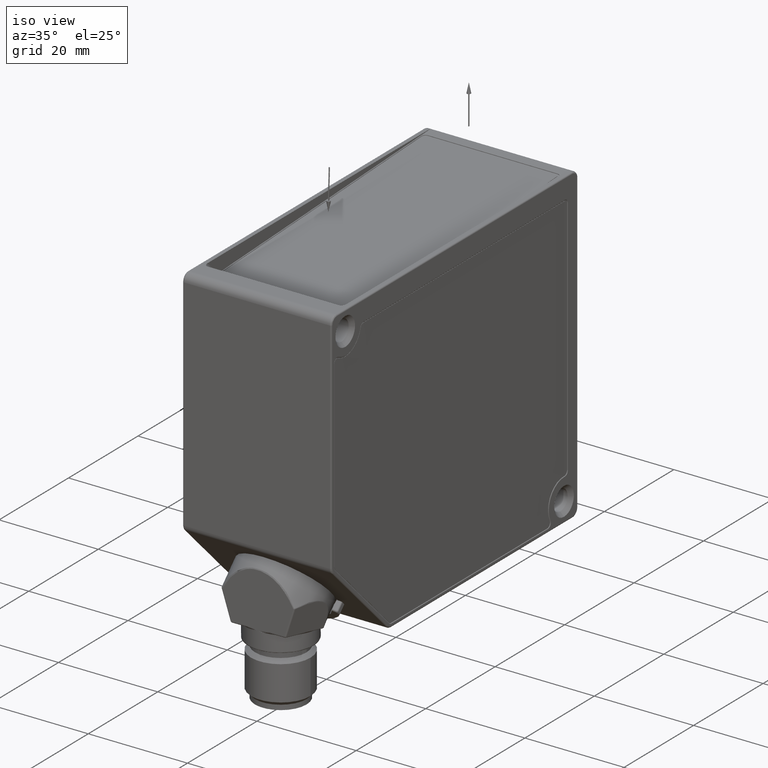
[diagram: clean part render]
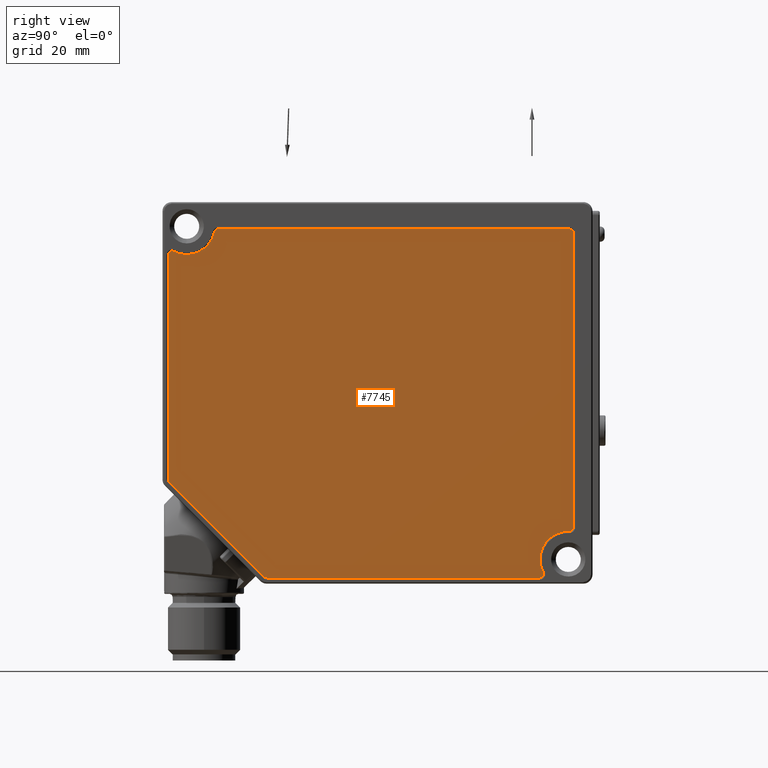
[diagram: tour spotlight — one face highlighted and labeled with its STEP entity id]
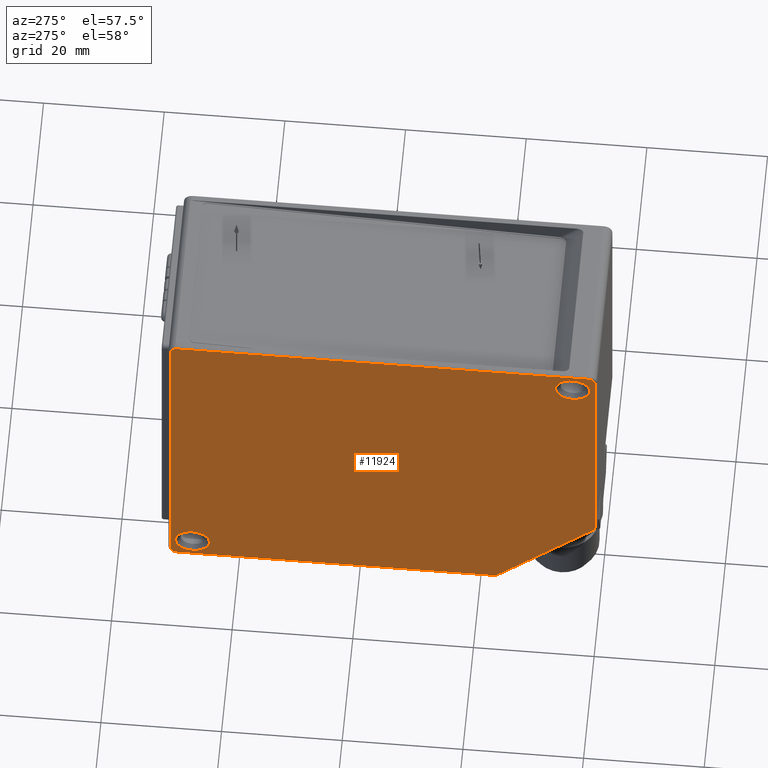
[diagram: tour spotlight — one face highlighted and labeled with its STEP entity id]
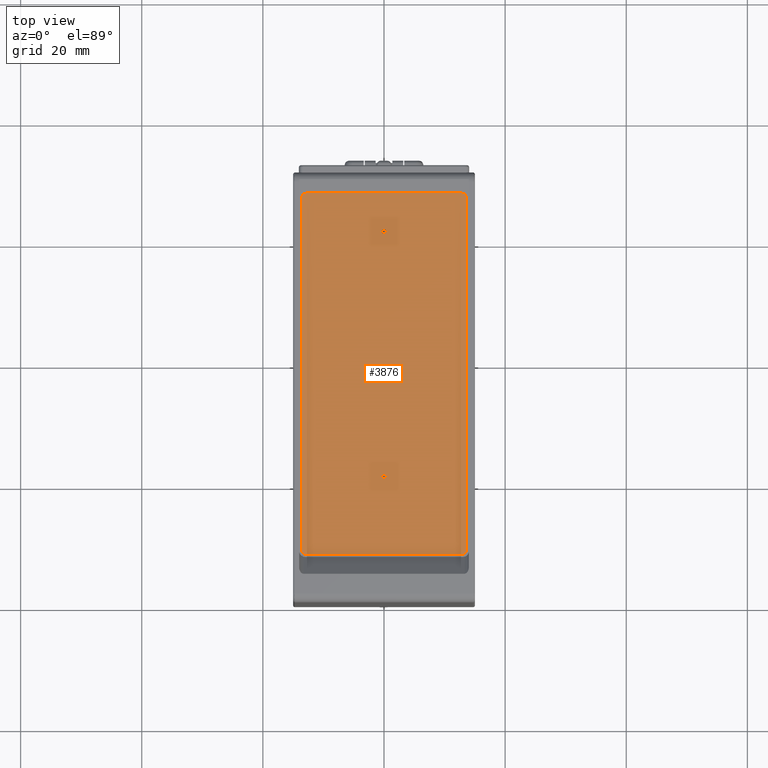
[diagram: tour spotlight — one face highlighted and labeled with its STEP entity id]
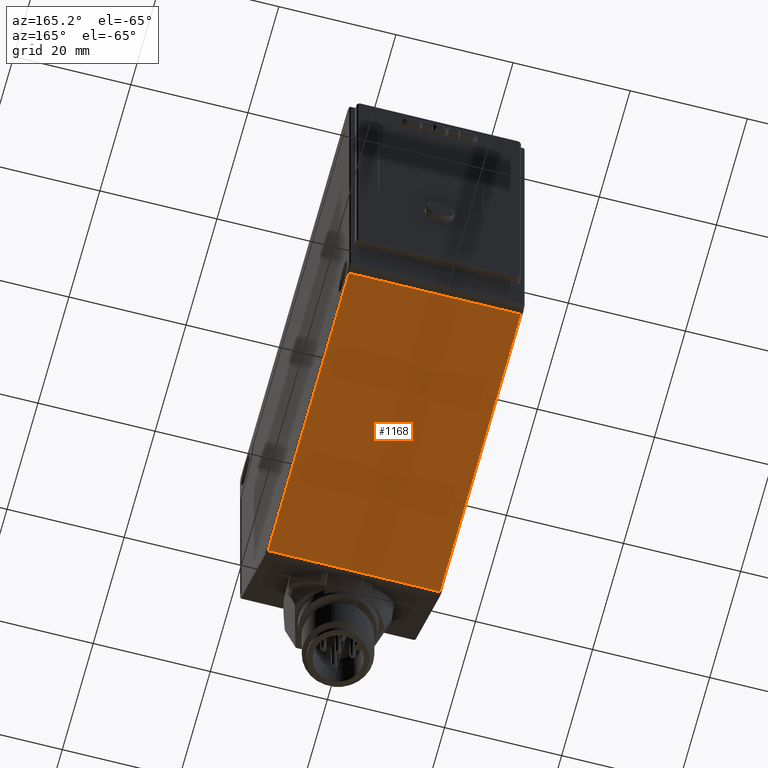
[diagram: tour spotlight — one face highlighted and labeled with its STEP entity id]
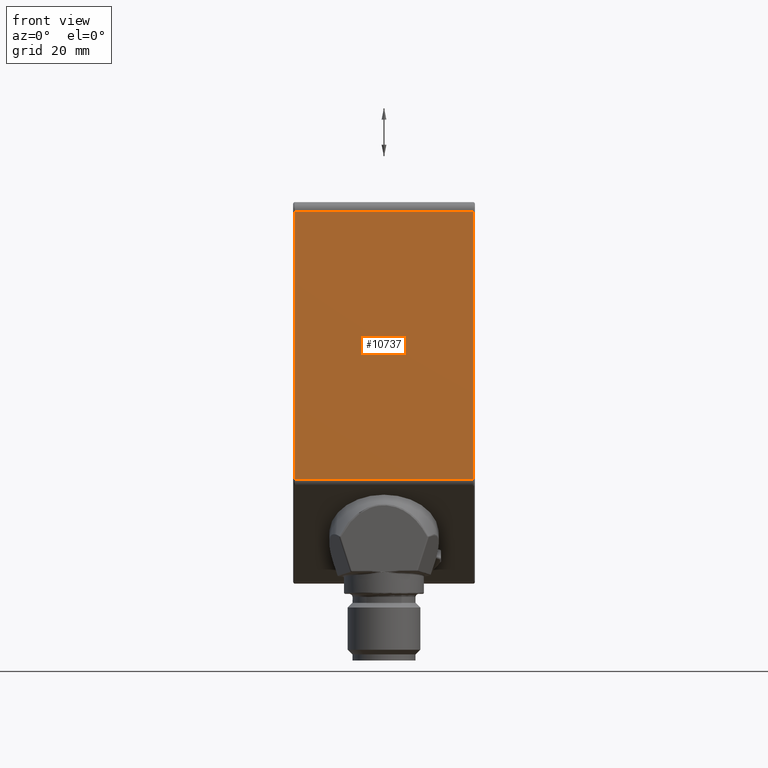
[diagram: tour spotlight — one face highlighted and labeled with its STEP entity id]
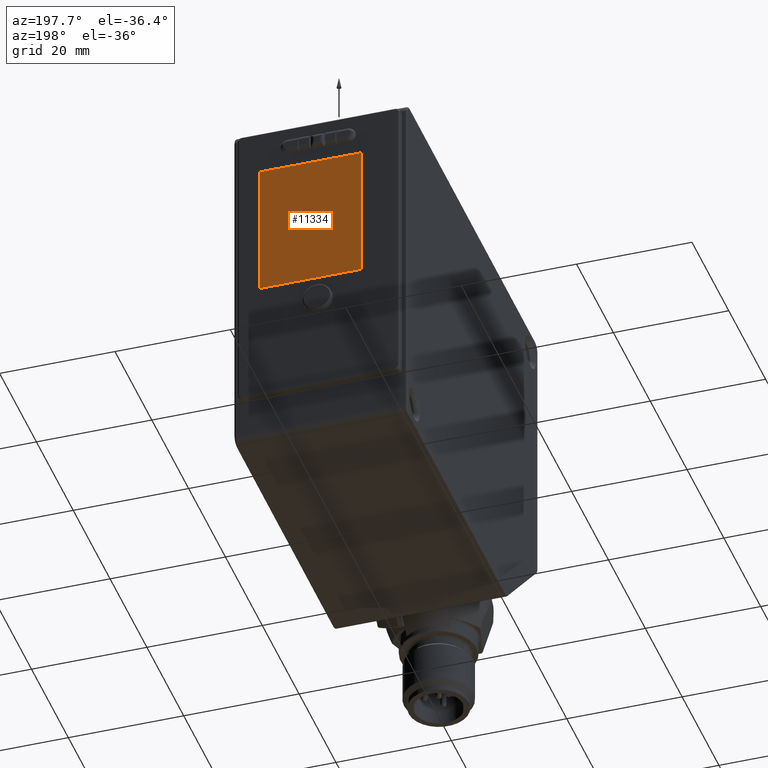
[diagram: tour spotlight — one face highlighted and labeled with its STEP entity id]
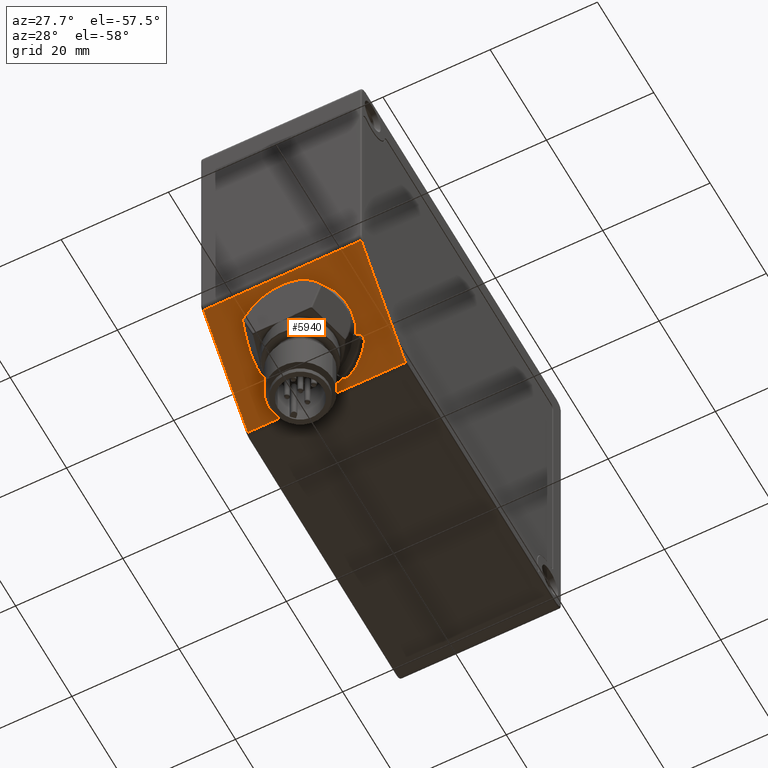
[diagram: tour spotlight — one face highlighted and labeled with its STEP entity id]
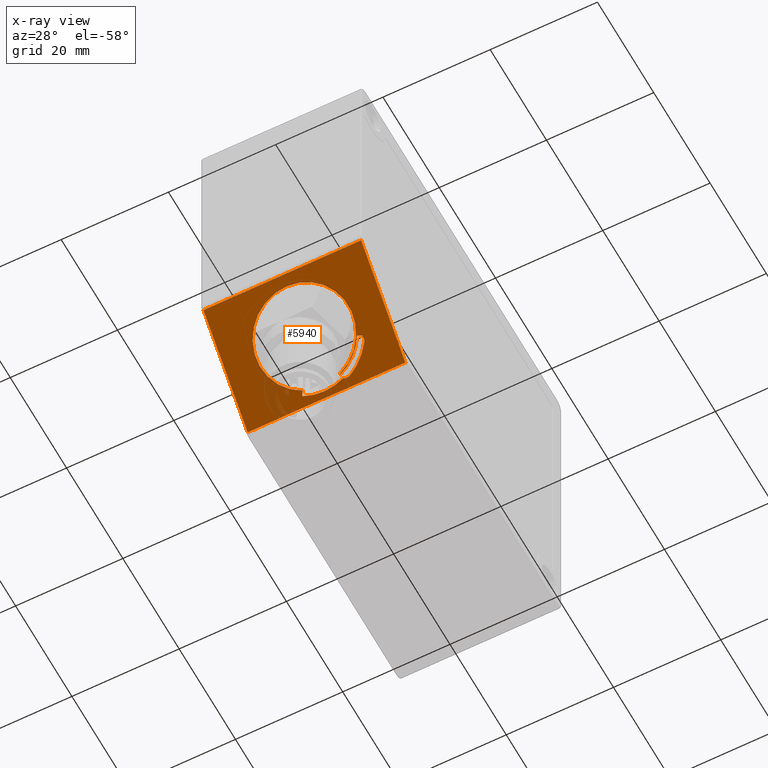
[diagram: x-ray of the same camera — body ghosted, this tour face saturated]
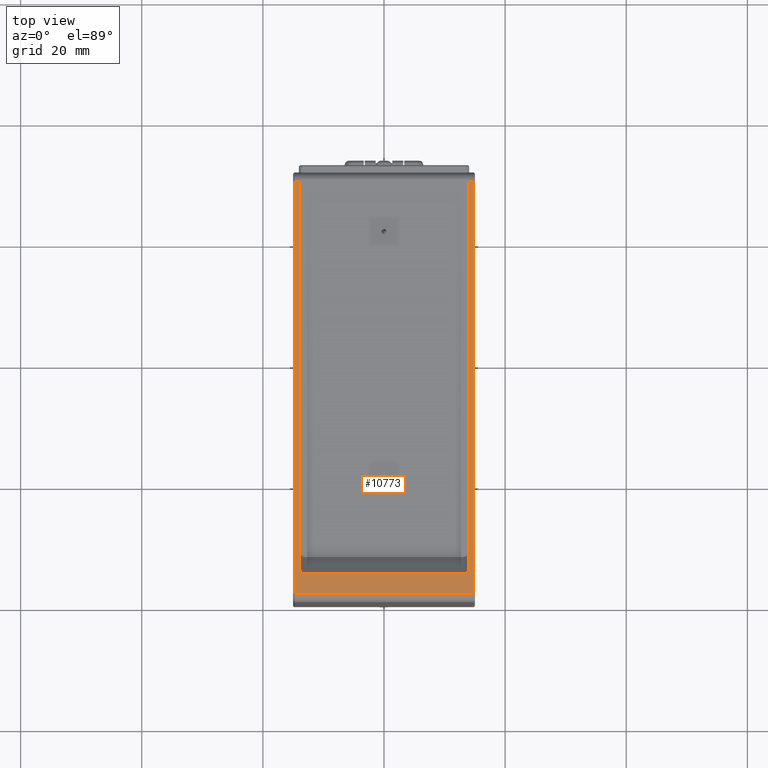
[diagram: tour spotlight — one face highlighted and labeled with its STEP entity id]
A machine part: a face-by-face anatomy tour. The part has 393 B-rep faces; the first image is the clean iso view, then the 8 largest visible faces are spotlighted one at a time (largest first), each with its STEP entity span.

Face 1 — right view, entity #7745. In plain terms, the highlighted planar face has unit normal (-1, -0, -0).
Definition (entity closure, byte-faithful):
#209 = LINE ( 'NONE', #5228, #1798 ) ;
#383 = AXIS2_PLACEMENT_3D ( 'NONE', #1575, #5594, #5530 ) ;
#431 = ORIENTED_EDGE ( 'NONE', *, *, #10982, .F. ) ;
#443 = VERTEX_POINT ( 'NONE', #8431 ) ;
#464 = DIRECTION ( 'NONE',  ( 9.064581613518479353E-16, -1.000000000000000000, 0.000000000000000000 ) ) ;
#569 = DIRECTION ( 'NONE',  ( -1.000000000000000000, -9.064581613518479353E-16, -7.192191359275970224E-17 ) ) ;
#659 = CARTESIAN_POINT ( 'NONE',  ( 0.5878740157480315531, 0.3365648150206295708, -0.1954761551032534461 ) ) ;
#695 = ORIENTED_EDGE ( 'NONE', *, *, #2618, .F. ) ;
#959 = DIRECTION ( 'NONE',  ( -1.000000000000000000, -9.064581613518479353E-16, -7.192191359275970224E-17 ) ) ;
#1055 = ORIENTED_EDGE ( 'NONE', *, *, #5719, .F. ) ;
#1427 = VERTEX_POINT ( 'NONE', #11535 ) ;
#1575 = CARTESIAN_POINT ( 'NONE',  ( 0.5878740157480315531, 0.06299212598425157905, -1.801238103299886095 ) ) ;
#1692 = ORIENTED_EDGE ( 'NONE', *, *, #12297, .T. ) ;
#1743 = CARTESIAN_POINT ( 'NONE',  ( 0.5878740157480315531, 2.247826718609764018, -0.1751968503937007815 ) ) ;
#1798 = VECTOR ( 'NONE', #6094, 39.37007874015748143 ) ;
#1801 = EDGE_CURVE ( 'NONE', #2611, #9728, #8244, .T. ) ;
#2130 = ORIENTED_EDGE ( 'NONE', *, *, #3744, .F. ) ;
#2166 = CARTESIAN_POINT ( 'NONE',  ( 0.5878740157480316642, 0.1574803149606292807, -0.1574803149606303077 ) ) ;
#2390 = ORIENTED_EDGE ( 'NONE', *, *, #5254, .F. ) ;
#2505 = CIRCLE ( 'NONE', #383, 0.02559055118110249022 ) ;
#2510 = DIRECTION ( 'NONE',  ( 0.000000000000000000, 1.000000000000000000, 0.000000000000000000 ) ) ;
#2525 = FACE_OUTER_BOUND ( 'NONE', #12527, .T. ) ;
#2595 = VECTOR ( 'NONE', #10362, 39.37007874015748854 ) ;
#2611 = VERTEX_POINT ( 'NONE', #6233 ) ;
#2618 = EDGE_CURVE ( 'NONE', #8261, #6817, #11061, .T. ) ;
#2755 = ORIENTED_EDGE ( 'NONE', *, *, #5681, .F. ) ;
#2968 = CARTESIAN_POINT ( 'NONE',  ( 0.5878740157480315531, 2.451753427547862518, -2.442913385826772199 ) ) ;
#3040 = DIRECTION ( 'NONE',  ( -7.461176240760458925E-16, 1.000000000000000000, 0.000000000000000000 ) ) ;
#3097 = EDGE_CURVE ( 'NONE', #9728, #10404, #2505, .T. ) ;
#3374 = VECTOR ( 'NONE', #10077, 39.37007874015748143 ) ;
#3520 = ORIENTED_EDGE ( 'NONE', *, *, #10403, .T. ) ;
#3642 = CARTESIAN_POINT ( 'NONE',  ( 0.5878740157480315531, 2.671259842519684735, -0.1751968503937007815 ) ) ;
#3666 = DIRECTION ( 'NONE',  ( -7.461176240760457939E-16, 1.000000000000000000, 1.492235248152091588E-15 ) ) ;
#3722 = LINE ( 'NONE', #1743, #3970 ) ;
#3744 = EDGE_CURVE ( 'NONE', #10276, #6645, #10924, .T. ) ;
#3829 = CARTESIAN_POINT ( 'NONE',  ( 0.5878740157480314421, 2.644703610161937668, -2.139894171898901298 ) ) ;
#3970 = VECTOR ( 'NONE', #5764, 39.37007874015748143 ) ;
#4130 = VERTEX_POINT ( 'NONE', #11381 ) ;
#4147 = CARTESIAN_POINT ( 'NONE',  ( 0.5878740157480316642, 0.03740157480314911659, -1.811838056667701036 ) ) ;
#4284 = CARTESIAN_POINT ( 'NONE',  ( 0.5878740157480315531, 0.6790768573300356437, -2.417322834645669438 ) ) ;
#4327 = CIRCLE ( 'NONE', #11098, 0.02559055118110247981 ) ;
#4339 = AXIS2_PLACEMENT_3D ( 'NONE', #9741, #569, #3666 ) ;
#4351 = ORIENTED_EDGE ( 'NONE', *, *, #1801, .F. ) ;
#4362 = AXIS2_PLACEMENT_3D ( 'NONE', #2166, #10227, #3040 ) ;
#4535 = DIRECTION ( 'NONE',  ( -1.000000000000000000, -9.064581613518479353E-16, -7.192191359275970224E-17 ) ) ;
#4836 = VECTOR ( 'NONE', #7677, 39.37007874015748143 ) ;
#4991 = ORIENTED_EDGE ( 'NONE', *, *, #11943, .F. ) ;
#5136 = CARTESIAN_POINT ( 'NONE',  ( 0.5878740157480315531, 0.03740157480314886679, -1.801238103299886095 ) ) ;
#5228 = CARTESIAN_POINT ( 'NONE',  ( 0.5878740157480315531, 0.03740157480314877658, -0.5439827562034409425 ) ) ;
#5254 = EDGE_CURVE ( 'NONE', #10404, #8064, #209, .T. ) ;
#5343 = DIRECTION ( 'NONE',  ( 0.000000000000000000, 1.000000000000000000, 0.000000000000000000 ) ) ;
#5500 = DIRECTION ( 'NONE',  ( -1.000000000000000000, -9.064581613518479353E-16, -7.192191359275970224E-17 ) ) ;
#5530 = DIRECTION ( 'NONE',  ( 0.000000000000000000, 1.000000000000000000, 0.000000000000000000 ) ) ;
#5594 = DIRECTION ( 'NONE',  ( -1.000000000000000000, -9.064581613518479353E-16, -7.192191359275970224E-17 ) ) ;
#5681 = EDGE_CURVE ( 'NONE', #6817, #2611, #6243, .T. ) ;
#5719 = EDGE_CURVE ( 'NONE', #5758, #7898, #6877, .T. ) ;
#5758 = VERTEX_POINT ( 'NONE', #8749 ) ;
#5764 = DIRECTION ( 'NONE',  ( -0.000000000000000000, 1.000000000000000000, 1.457167719820519931E-16 ) ) ;
#5809 = AXIS2_PLACEMENT_3D ( 'NONE', #10741, #10437, #11797 ) ;
#5912 = EDGE_CURVE ( 'NONE', #12789, #4130, #11788, .T. ) ;
#6037 = CARTESIAN_POINT ( 'NONE',  ( 0.5878740157480315531, 2.671259842519684735, -2.442913385826771755 ) ) ;
#6094 = DIRECTION ( 'NONE',  ( -8.938856609003875281E-32, 1.179611963664230057E-16, 1.000000000000000000 ) ) ;
#6233 = CARTESIAN_POINT ( 'NONE',  ( 0.5878740157480315531, 0.6609816050555766820, -2.435418086920128733 ) ) ;
#6243 = CIRCLE ( 'NONE', #12155, 0.02559055118110241389 ) ;
#6346 = CARTESIAN_POINT ( 'NONE',  ( 0.5878740157480315531, 0.06299212598425132925, -0.3435221630033180595 ) ) ;
#6500 = DIRECTION ( 'NONE',  ( 0.000000000000000000, 1.000000000000000000, 1.334402673828307127E-15 ) ) ;
#6551 = PLANE ( 'NONE',  #11717 ) ;
#6593 = CARTESIAN_POINT ( 'NONE',  ( 0.5878740157480315531, 2.451753427547862518, -2.417322834645669438 ) ) ;
#6619 = EDGE_CURVE ( 'NONE', #4130, #5758, #8723, .T. ) ;
#6645 = VERTEX_POINT ( 'NONE', #11046 ) ;
#6802 = ORIENTED_EDGE ( 'NONE', *, *, #6619, .F. ) ;
#6817 = VERTEX_POINT ( 'NONE', #7271 ) ;
#6877 = CIRCLE ( 'NONE', #5809, 0.02559055118110227511 ) ;
#7175 = DIRECTION ( 'NONE',  ( 0.000000000000000000, -1.000000000000000000, 0.000000000000000000 ) ) ;
#7271 = CARTESIAN_POINT ( 'NONE',  ( 0.5878740157480315531, 0.6790768573300355326, -2.442913385826772199 ) ) ;
#7326 = CARTESIAN_POINT ( 'NONE',  ( 0.5878740157480315531, 0.03740157480314880434, -0.3435221630033180595 ) ) ;
#7545 = CIRCLE ( 'NONE', #4362, 0.1830708661417323191 ) ;
#7677 = DIRECTION ( 'NONE',  ( 8.938856609003875281E-32, -1.179611963664230057E-16, -1.000000000000000000 ) ) ;
#7745 = ADVANCED_FACE ( 'NONE', ( #2525 ), #6551, .F. ) ;
#7898 = VERTEX_POINT ( 'NONE', #3829 ) ;
#8064 = VERTEX_POINT ( 'NONE', #7326 ) ;
#8194 = DIRECTION ( 'NONE',  ( 0.000000000000000000, 1.000000000000000000, 1.067522139062648384E-14 ) ) ;
#8244 = LINE ( 'NONE', #4147, #2595 ) ;
#8261 = VERTEX_POINT ( 'NONE', #2968 ) ;
#8419 = CARTESIAN_POINT ( 'NONE',  ( 0.5878740157480315531, 2.645669291338583307, -0.1751968503937007260 ) ) ;
#8431 = CARTESIAN_POINT ( 'NONE',  ( 0.5878740157480315531, 2.474569880609702288, -2.405734660525924440 ) ) ;
#8478 = CARTESIAN_POINT ( 'NONE',  ( 0.5878740157480315531, 0.3615981322333178261, -0.2007874015748027652 ) ) ;
#8723 = LINE ( 'NONE', #3642, #4836 ) ;
#8749 = CARTESIAN_POINT ( 'NONE',  ( 0.5878740157480315531, 2.671259842519684735, -2.114321847608417126 ) ) ;
#9064 = AXIS2_PLACEMENT_3D ( 'NONE', #11139, #959, #7175 ) ;
#9176 = DIRECTION ( 'NONE',  ( -1.000000000000000000, -9.064581613518479353E-16, -7.192191359275970224E-17 ) ) ;
#9446 = AXIS2_PLACEMENT_3D ( 'NONE', #8478, #5500, #6500 ) ;
#9728 = VERTEX_POINT ( 'NONE', #10592 ) ;
#9741 = CARTESIAN_POINT ( 'NONE',  ( 0.5878740157480314421, 2.637795275590551380, -2.322834645669291653 ) ) ;
#10054 = CIRCLE ( 'NONE', #4339, 0.1830708661417323468 ) ;
#10077 = DIRECTION ( 'NONE',  ( -0.000000000000000000, -1.000000000000000000, -1.457167719820519931E-16 ) ) ;
#10227 = DIRECTION ( 'NONE',  ( -1.000000000000000000, -9.064581613518479353E-16, -7.192191359275970224E-17 ) ) ;
#10276 = VERTEX_POINT ( 'NONE', #659 ) ;
#10362 = DIRECTION ( 'NONE',  ( -0.000000000000000000, -0.7071067811865474617, 0.7071067811865474617 ) ) ;
#10371 = DIRECTION ( 'NONE',  ( -1.000000000000000000, -9.064581613518479353E-16, -7.192191359275970224E-17 ) ) ;
#10403 = EDGE_CURVE ( 'NONE', #10276, #1427, #7545, .T. ) ;
#10404 = VERTEX_POINT ( 'NONE', #5136 ) ;
#10437 = DIRECTION ( 'NONE',  ( -1.000000000000000000, -9.064581613518479353E-16, -7.192191359275970224E-17 ) ) ;
#10489 = CIRCLE ( 'NONE', #12379, 0.02559055118110227511 ) ;
#10580 = CARTESIAN_POINT ( 'NONE',  ( 0.5878740157480315531, 1.585967237274637842, -0.3595898032985713200 ) ) ;
#10592 = CARTESIAN_POINT ( 'NONE',  ( 0.5878740157480315531, 0.04489687370979230513, -1.819333355574344058 ) ) ;
#10663 = ORIENTED_EDGE ( 'NONE', *, *, #11469, .F. ) ;
#10700 = DIRECTION ( 'NONE',  ( -1.000000000000000000, -9.064581613518479353E-16, -7.192191359275970224E-17 ) ) ;
#10741 = CARTESIAN_POINT ( 'NONE',  ( 0.5878740157480315531, 2.645669291338583307, -2.114321847608417126 ) ) ;
#10805 = ORIENTED_EDGE ( 'NONE', *, *, #3097, .F. ) ;
#10924 = CIRCLE ( 'NONE', #9446, 0.02559055118110247981 ) ;
#10982 = EDGE_CURVE ( 'NONE', #6645, #12789, #3722, .T. ) ;
#11046 = CARTESIAN_POINT ( 'NONE',  ( 0.5878740157480315531, 0.3615981322333176595, -0.1751968503937010591 ) ) ;
#11061 = LINE ( 'NONE', #6037, #3374 ) ;
#11098 = AXIS2_PLACEMENT_3D ( 'NONE', #6346, #10371, #5343 ) ;
#11139 = CARTESIAN_POINT ( 'NONE',  ( 0.5878740157480315531, 2.645669291338583307, -0.2007874015748031260 ) ) ;
#11381 = CARTESIAN_POINT ( 'NONE',  ( 0.5878740157480315531, 2.671259842519684735, -0.2007874015748031260 ) ) ;
#11469 = EDGE_CURVE ( 'NONE', #443, #8261, #10489, .T. ) ;
#11535 = CARTESIAN_POINT ( 'NONE',  ( 0.5878740157480316642, 0.07458030010399596677, -0.3207057099414790113 ) ) ;
#11717 = AXIS2_PLACEMENT_3D ( 'NONE', #10580, #10700, #464 ) ;
#11788 = CIRCLE ( 'NONE', #9064, 0.02559055118110227511 ) ;
#11797 = DIRECTION ( 'NONE',  ( 0.000000000000000000, 1.000000000000000000, 0.000000000000000000 ) ) ;
#11943 = EDGE_CURVE ( 'NONE', #8064, #1427, #4327, .T. ) ;
#12155 = AXIS2_PLACEMENT_3D ( 'NONE', #4284, #9176, #8194 ) ;
#12297 = EDGE_CURVE ( 'NONE', #443, #7898, #10054, .T. ) ;
#12379 = AXIS2_PLACEMENT_3D ( 'NONE', #6593, #4535, #2510 ) ;
#12527 = EDGE_LOOP ( 'NONE', ( #2755, #695, #10663, #1692, #1055, #6802, #12757, #431, #2130, #3520, #4991, #2390, #10805, #4351 ) ) ;
#12757 = ORIENTED_EDGE ( 'NONE', *, *, #5912, .F. ) ;
#12789 = VERTEX_POINT ( 'NONE', #8419 ) ;

Face 2 — auxiliary view, entity #11924. In plain terms, the highlighted planar face has unit normal (1, -0, 0).
Definition (entity closure, byte-faithful):
#6 = ORIENTED_EDGE ( 'NONE', *, *, #6279, .F. ) ;
#25 = ORIENTED_EDGE ( 'NONE', *, *, #6046, .F. ) ;
#103 = CARTESIAN_POINT ( 'NONE',  ( -0.5905511811023621549, 2.736220472440945350, -2.468503937007874516 ) ) ;
#175 = CARTESIAN_POINT ( 'NONE',  ( -0.5905511811023621549, 0.02564849852661966328, -1.836275484940090186 ) ) ;
#235 = EDGE_CURVE ( 'NONE', #10468, #12201, #8093, .T. ) ;
#259 = EDGE_CURVE ( 'NONE', #3636, #4592, #9022, .T. ) ;
#310 = CARTESIAN_POINT ( 'NONE',  ( -0.5905511811023621549, 2.736220472440945350, -2.468503937007874516 ) ) ;
#694 = ORIENTED_EDGE ( 'NONE', *, *, #259, .F. ) ;
#842 = EDGE_CURVE ( 'NONE', #4592, #10468, #4506, .T. ) ;
#886 = LINE ( 'NONE', #4002, #1653 ) ;
#913 = VERTEX_POINT ( 'NONE', #4942 ) ;
#1068 = FACE_BOUND ( 'NONE', #8716, .T. ) ;
#1241 = CARTESIAN_POINT ( 'NONE',  ( -0.5905511811023621549, 2.763895422250089773, -2.468503937007874516 ) ) ;
#1337 = VERTEX_POINT ( 'NONE', #2029 ) ;
#1357 = CARTESIAN_POINT ( 'NONE',  ( -0.5905511811023622659, 2.783464566929133799, -0.03138016830109131156 ) ) ;
#1361 = CARTESIAN_POINT ( 'NONE',  ( -0.5905511811023621549, 0.6774460952734489005, -2.468503937007874516 ) ) ;
#1594 = VECTOR ( 'NONE', #12632, 39.37007874015748143 ) ;
#1619 = EDGE_CURVE ( 'NONE', #9127, #1337, #3011, .T. ) ;
#1653 = VECTOR ( 'NONE', #4911, 39.37007874015748143 ) ;
#1725 = VERTEX_POINT ( 'NONE', #3142 ) ;
#1872 = EDGE_CURVE ( 'NONE', #7720, #7720, #9983, .T. ) ;
#1931 = ORIENTED_EDGE ( 'NONE', *, *, #2810, .F. ) ;
#2029 = CARTESIAN_POINT ( 'NONE',  ( -0.5905511811023621549, 0.01181102362204724046, -0.05905511811023622659 ) ) ;
#2102 = CARTESIAN_POINT ( 'NONE',  ( -0.5905511811023620439, 2.637795275590551380, -2.322834645669291653 ) ) ;
#2226 = CARTESIAN_POINT ( 'NONE',  ( -0.5905511811023621549, 0.6530178755853810468, -2.463644861998850022 ) ) ;
#2238 = DIRECTION ( 'NONE',  ( 1.000000000000000000, -0.000000000000000000, 0.000000000000000000 ) ) ;
#2413 = CARTESIAN_POINT ( 'NONE',  ( -0.5905511811023621549, 0.01181102362204724393, 0.000000000000000000 ) ) ;
#2810 = EDGE_CURVE ( 'NONE', #1725, #11608, #10333, .T. ) ;
#2911 = CARTESIAN_POINT ( 'NONE',  ( -0.5905511811023621549, 0.02564849852661966328, -1.836275484940090186 ) ) ;
#3011 =( BOUNDED_CURVE ( )  B_SPLINE_CURVE ( 3, ( #9086, #3203, #10206, #4250 ),
 .UNSPECIFIED., .F., .T. ) 
 B_SPLINE_CURVE_WITH_KNOTS ( ( 4, 4 ),
 ( 0.000000000000000000, 1.000000000000000000 ),
 .UNSPECIFIED. ) 
 CURVE ( )  GEOMETRIC_REPRESENTATION_ITEM ( )  RATIONAL_B_SPLINE_CURVE ( ( 1.000000000000000000, 0.8047378541243649375, 0.8047378541243649375, 1.000000000000000000 ) ) 
 REPRESENTATION_ITEM ( '' )  );
#3115 = CARTESIAN_POINT ( 'NONE',  ( -0.5905511811023620439, 0.000000000000000000, 0.000000000000000000 ) ) ;
#3142 = CARTESIAN_POINT ( 'NONE',  ( -0.5905511811023621549, 0.01181102362204727689, -1.802868865356472616 ) ) ;
#3156 = CARTESIAN_POINT ( 'NONE',  ( -0.5905511811023621549, 0.6647487203727547866, -2.468503937007873628 ) ) ;
#3203 = CARTESIAN_POINT ( 'NONE',  ( -0.5905511811023621549, 0.03138016830109111727, -0.01181102362204722658 ) ) ;
#3233 = DIRECTION ( 'NONE',  ( 0.000000000000000000, 0.000000000000000000, -1.000000000000000000 ) ) ;
#3537 = CARTESIAN_POINT ( 'NONE',  ( -0.5905511811023621549, 2.736220472440945350, -0.01181102362204734975 ) ) ;
#3585 = ORIENTED_EDGE ( 'NONE', *, *, #1619, .F. ) ;
#3636 = VERTEX_POINT ( 'NONE', #7030 ) ;
#3830 = CARTESIAN_POINT ( 'NONE',  ( -0.5905511811023621549, 0.01667009863107150880, -1.827297085044541136 ) ) ;
#3924 = LINE ( 'NONE', #3999, #9259 ) ;
#3928 =( BOUNDED_CURVE ( )  B_SPLINE_CURVE ( 3, ( #8553, #1357, #9483, #3537 ),
 .UNSPECIFIED., .F., .T. ) 
 B_SPLINE_CURVE_WITH_KNOTS ( ( 4, 4 ),
 ( 0.000000000000000000, 1.000000000000000000 ),
 .UNSPECIFIED. ) 
 CURVE ( )  GEOMETRIC_REPRESENTATION_ITEM ( )  RATIONAL_B_SPLINE_CURVE ( ( 1.000000000000000000, 0.8047378541243646044, 0.8047378541243646044, 1.000000000000000000 ) ) 
 REPRESENTATION_ITEM ( '' )  );
#3999 = CARTESIAN_POINT ( 'NONE',  ( -0.5905511811023621549, 0.02564849852661980553, -1.836275484940090630 ) ) ;
#4002 = CARTESIAN_POINT ( 'NONE',  ( -0.5905511811023621549, 0.000000000000000000, -0.01181102362204724393 ) ) ;
#4093 = FACE_BOUND ( 'NONE', #4444, .T. ) ;
#4250 = CARTESIAN_POINT ( 'NONE',  ( -0.5905511811023621549, 0.01181102362204724046, -0.05905511811023622659 ) ) ;
#4263 = AXIS2_PLACEMENT_3D ( 'NONE', #2102, #2238, #6268 ) ;
#4311 = EDGE_LOOP ( 'NONE', ( #6292, #12927, #7105, #694, #6, #1931, #25, #3585, #6762, #10616 ) ) ;
#4444 = EDGE_LOOP ( 'NONE', ( #6971 ) ) ;
#4506 = LINE ( 'NONE', #10471, #9091 ) ;
#4592 = VERTEX_POINT ( 'NONE', #1361 ) ;
#4763 = CIRCLE ( 'NONE', #5607, 0.1113779549999989182 ) ;
#4806 = CARTESIAN_POINT ( 'NONE',  ( -0.5905511811023621549, 2.783464566929133799, -2.421259842519685179 ) ) ;
#4911 = DIRECTION ( 'NONE',  ( -0.000000000000000000, -1.000000000000000000, -0.000000000000000000 ) ) ;
#4942 = CARTESIAN_POINT ( 'NONE',  ( -0.5905511811023620439, 0.1574803149606299191, -0.2688582699606288373 ) ) ;
#5129 = ORIENTED_EDGE ( 'NONE', *, *, #12505, .T. ) ;
#5443 = EDGE_CURVE ( 'NONE', #12201, #8218, #7733, .T. ) ;
#5458 = VECTOR ( 'NONE', #11271, 39.37007874015748143 ) ;
#5549 = CARTESIAN_POINT ( 'NONE',  ( -0.5905511811023621549, 2.783464566929133799, 0.000000000000000000 ) ) ;
#5607 = AXIS2_PLACEMENT_3D ( 'NONE', #5772, #12066, #12857 ) ;
#5772 = CARTESIAN_POINT ( 'NONE',  ( -0.5905511811023620439, 0.1574803149606299191, -0.1574803149606299191 ) ) ;
#6046 = EDGE_CURVE ( 'NONE', #1337, #1725, #12260, .T. ) ;
#6071 = CARTESIAN_POINT ( 'NONE',  ( -0.5905511811023621549, 0.01181102362204727689, -1.802868865356472616 ) ) ;
#6268 = DIRECTION ( 'NONE',  ( 0.000000000000000000, 0.000000000000000000, -1.000000000000000000 ) ) ;
#6279 = EDGE_CURVE ( 'NONE', #11608, #3636, #3924, .T. ) ;
#6292 = ORIENTED_EDGE ( 'NONE', *, *, #5443, .F. ) ;
#6434 = DIRECTION ( 'NONE',  ( 0.000000000000000000, 1.000000000000000000, 0.000000000000000000 ) ) ;
#6762 = ORIENTED_EDGE ( 'NONE', *, *, #11068, .F. ) ;
#6971 = ORIENTED_EDGE ( 'NONE', *, *, #1872, .T. ) ;
#7030 = CARTESIAN_POINT ( 'NONE',  ( -0.5905511811023621549, 0.6440394756898317752, -2.454666462103300528 ) ) ;
#7086 = AXIS2_PLACEMENT_3D ( 'NONE', #3115, #7143, #3233 ) ;
#7105 = ORIENTED_EDGE ( 'NONE', *, *, #842, .F. ) ;
#7143 = DIRECTION ( 'NONE',  ( 1.000000000000000000, -0.000000000000000000, 0.000000000000000000 ) ) ;
#7313 = CARTESIAN_POINT ( 'NONE',  ( -0.5905511811023621549, 2.783464566929133799, -2.421259842519685179 ) ) ;
#7601 = CARTESIAN_POINT ( 'NONE',  ( -0.5905511811023620439, 2.637795275590551380, -2.434212600669292126 ) ) ;
#7720 = VERTEX_POINT ( 'NONE', #7601 ) ;
#7733 = LINE ( 'NONE', #5549, #1594 ) ;
#8093 =( BOUNDED_CURVE ( )  B_SPLINE_CURVE ( 3, ( #103, #1241, #9041, #7313 ),
 .UNSPECIFIED., .F., .T. ) 
 B_SPLINE_CURVE_WITH_KNOTS ( ( 4, 4 ),
 ( 0.000000000000000000, 1.000000000000000000 ),
 .UNSPECIFIED. ) 
 CURVE ( )  GEOMETRIC_REPRESENTATION_ITEM ( )  RATIONAL_B_SPLINE_CURVE ( ( 1.000000000000000000, 0.8047378541243649375, 0.8047378541243649375, 1.000000000000000000 ) ) 
 REPRESENTATION_ITEM ( '' )  );
#8123 = FACE_OUTER_BOUND ( 'NONE', #4311, .T. ) ;
#8218 = VERTEX_POINT ( 'NONE', #10498 ) ;
#8236 = CARTESIAN_POINT ( 'NONE',  ( -0.5905511811023621549, 0.6440394756898317752, -2.454666462103300528 ) ) ;
#8553 = CARTESIAN_POINT ( 'NONE',  ( -0.5905511811023621549, 2.783464566929133799, -0.05905511811023625435 ) ) ;
#8716 = EDGE_LOOP ( 'NONE', ( #5129 ) ) ;
#9022 =( BOUNDED_CURVE ( )  B_SPLINE_CURVE ( 3, ( #8236, #2226, #3156, #9289 ),
 .UNSPECIFIED., .F., .T. ) 
 B_SPLINE_CURVE_WITH_KNOTS ( ( 4, 4 ),
 ( 0.000000000000000000, 1.000000000000000000 ),
 .UNSPECIFIED. ) 
 CURVE ( )  GEOMETRIC_REPRESENTATION_ITEM ( )  RATIONAL_B_SPLINE_CURVE ( ( 1.000000000000000000, 0.9492530216741910110, 0.9492530216741910110, 1.000000000000000000 ) ) 
 REPRESENTATION_ITEM ( '' )  );
#9041 = CARTESIAN_POINT ( 'NONE',  ( -0.5905511811023621549, 2.783464566929134243, -2.448934792328830490 ) ) ;
#9086 = CARTESIAN_POINT ( 'NONE',  ( -0.5905511811023621549, 0.05905511811023624047, -0.01181102362204724046 ) ) ;
#9091 = VECTOR ( 'NONE', #6434, 39.37007874015748143 ) ;
#9127 = VERTEX_POINT ( 'NONE', #10891 ) ;
#9259 = VECTOR ( 'NONE', #11193, 39.37007874015748854 ) ;
#9289 = CARTESIAN_POINT ( 'NONE',  ( -0.5905511811023621549, 0.6774460952734489005, -2.468503937007874516 ) ) ;
#9483 = CARTESIAN_POINT ( 'NONE',  ( -0.5905511811023622659, 2.763895422250090661, -0.01181102362204753536 ) ) ;
#9983 = CIRCLE ( 'NONE', #4263, 0.1113779550000005558 ) ;
#10047 = CARTESIAN_POINT ( 'NONE',  ( -0.5905511811023621549, 0.01181102362204725607, -1.815566240257167063 ) ) ;
#10206 = CARTESIAN_POINT ( 'NONE',  ( -0.5905511811023621549, 0.01181102362204724567, -0.03138016830109107563 ) ) ;
#10333 =( BOUNDED_CURVE ( )  B_SPLINE_CURVE ( 3, ( #6071, #10047, #3830, #2911 ),
 .UNSPECIFIED., .F., .T. ) 
 B_SPLINE_CURVE_WITH_KNOTS ( ( 4, 4 ),
 ( 0.000000000000000000, 1.000000000000000000 ),
 .UNSPECIFIED. ) 
 CURVE ( )  GEOMETRIC_REPRESENTATION_ITEM ( )  RATIONAL_B_SPLINE_CURVE ( ( 1.000000000000000000, 0.9492530216741879023, 0.9492530216741879023, 1.000000000000000000 ) ) 
 REPRESENTATION_ITEM ( '' )  );
#10468 = VERTEX_POINT ( 'NONE', #310 ) ;
#10471 = CARTESIAN_POINT ( 'NONE',  ( -0.5905511811023621549, 0.000000000000000000, -2.468503937007874516 ) ) ;
#10498 = CARTESIAN_POINT ( 'NONE',  ( -0.5905511811023621549, 2.783464566929133799, -0.05905511811023625435 ) ) ;
#10616 = ORIENTED_EDGE ( 'NONE', *, *, #10844, .F. ) ;
#10844 = EDGE_CURVE ( 'NONE', #8218, #12470, #3928, .T. ) ;
#10891 = CARTESIAN_POINT ( 'NONE',  ( -0.5905511811023621549, 0.05905511811023624047, -0.01181102362204724046 ) ) ;
#11008 = CARTESIAN_POINT ( 'NONE',  ( -0.5905511811023621549, 2.736220472440945350, -0.01181102362204734975 ) ) ;
#11068 = EDGE_CURVE ( 'NONE', #12470, #9127, #886, .T. ) ;
#11193 = DIRECTION ( 'NONE',  ( 0.000000000000000000, 0.7071067811865486830, -0.7071067811865462405 ) ) ;
#11271 = DIRECTION ( 'NONE',  ( 0.000000000000000000, 0.000000000000000000, -1.000000000000000000 ) ) ;
#11608 = VERTEX_POINT ( 'NONE', #175 ) ;
#11924 = ADVANCED_FACE ( 'NONE', ( #1068, #4093, #8123 ), #12164, .F. ) ;
#12066 = DIRECTION ( 'NONE',  ( 1.000000000000000000, -0.000000000000000000, 0.000000000000000000 ) ) ;
#12164 = PLANE ( 'NONE',  #7086 ) ;
#12201 = VERTEX_POINT ( 'NONE', #4806 ) ;
#12260 = LINE ( 'NONE', #2413, #5458 ) ;
#12470 = VERTEX_POINT ( 'NONE', #11008 ) ;
#12505 = EDGE_CURVE ( 'NONE', #913, #913, #4763, .T. ) ;
#12632 = DIRECTION ( 'NONE',  ( -0.000000000000000000, -0.000000000000000000, 1.000000000000000000 ) ) ;
#12857 = DIRECTION ( 'NONE',  ( 0.000000000000000000, 0.000000000000000000, -1.000000000000000000 ) ) ;
#12927 = ORIENTED_EDGE ( 'NONE', *, *, #235, .F. ) ;

Face 3 — top view, entity #3876. In plain terms, the highlighted planar face has unit normal (0, -0.048, 0.9988).
Definition (entity closure, byte-faithful):
#79 = EDGE_CURVE ( 'NONE', #3872, #9864, #9565, .T. ) ;
#104 = AXIS2_PLACEMENT_3D ( 'NONE', #9985, #9287, #4260 ) ;
#390 = DIRECTION ( 'NONE',  ( -1.000000000000000000, -3.704228166971562371E-15, -1.779268380186993821E-16 ) ) ;
#553 = VERTEX_POINT ( 'NONE', #9489 ) ;
#604 = VERTEX_POINT ( 'NONE', #5910 ) ;
#682 = CARTESIAN_POINT ( 'NONE',  ( 0.5078740157480237105, 2.635090846864568626, -0.008923496130451255212 ) ) ;
#849 = LINE ( 'NONE', #9102, #9605 ) ;
#1135 = ORIENTED_EDGE ( 'NONE', *, *, #2296, .F. ) ;
#1308 = CARTESIAN_POINT ( 'NONE',  ( 0.5078740157480237105, 2.660651927621072943, -0.007695709376951484146 ) ) ;
#1710 = CARTESIAN_POINT ( 'NONE',  ( 0.5334645669291331327, 2.635090846864568181, -0.008923496130451336744 ) ) ;
#1795 = VECTOR ( 'NONE', #6520, 39.37007874015748854 ) ;
#1874 = VERTEX_POINT ( 'NONE', #9234 ) ;
#1942 = EDGE_CURVE ( 'NONE', #1874, #3872, #2826, .T. ) ;
#2181 = ORIENTED_EDGE ( 'NONE', *, *, #12114, .F. ) ;
#2296 = EDGE_CURVE ( 'NONE', #9864, #10390, #8728, .T. ) ;
#2448 = EDGE_CURVE ( 'NONE', #9385, #9185, #5904, .T. ) ;
#2826 = CIRCLE ( 'NONE', #8940, 0.02559055118110236185 ) ;
#3039 = DIRECTION ( 'NONE',  ( -2.553240044226999296E-17, 0.04797812852134428901, -0.9988483864849507787 ) ) ;
#3164 = CARTESIAN_POINT ( 'NONE',  ( 0.5078740157480314821, 0.3385260527416892318, -0.1192354136755909427 ) ) ;
#3647 = DIRECTION ( 'NONE',  ( 0.000000000000000000, -0.9988483864849507787, -0.04797812852134430289 ) ) ;
#3707 = CARTESIAN_POINT ( 'NONE',  ( 0.5334645669291260273, 2.660651927621072943, -0.007695709376950710459 ) ) ;
#3713 = CARTESIAN_POINT ( 'NONE',  ( -2.526959394139445104E-15, 1.486808449803129761, -0.06407945490302008329 ) ) ;
#3734 = ORIENTED_EDGE ( 'NONE', *, *, #8725, .F. ) ;
#3872 = VERTEX_POINT ( 'NONE', #7681 ) ;
#3876 = ADVANCED_FACE ( 'NONE', ( #4762 ), #8800, .T. ) ;
#4260 = DIRECTION ( 'NONE',  ( 0.000000000000000000, -0.9988483864849506677, -0.04797812852134403228 ) ) ;
#4462 = EDGE_CURVE ( 'NONE', #553, #604, #5377, .T. ) ;
#4542 = EDGE_CURVE ( 'NONE', #10390, #553, #7441, .T. ) ;
#4762 = FACE_OUTER_BOUND ( 'NONE', #5822, .T. ) ;
#4997 = CARTESIAN_POINT ( 'NONE',  ( -0.5078740157480314821, 0.3385260527416885101, -0.1192354136755892080 ) ) ;
#5116 = ORIENTED_EDGE ( 'NONE', *, *, #2448, .F. ) ;
#5377 = CIRCLE ( 'NONE', #104, 0.02559055118110250063 ) ;
#5406 = CARTESIAN_POINT ( 'NONE',  ( -0.5334645669291339098, 0.3129649719851836931, -0.1204632004290898117 ) ) ;
#5435 = AXIS2_PLACEMENT_3D ( 'NONE', #3713, #10921, #3647 ) ;
#5475 = AXIS2_PLACEMENT_3D ( 'NONE', #682, #5763, #9796 ) ;
#5617 = ORIENTED_EDGE ( 'NONE', *, *, #79, .F. ) ;
#5742 = ORIENTED_EDGE ( 'NONE', *, *, #1942, .F. ) ;
#5763 = DIRECTION ( 'NONE',  ( -2.553240044226999296E-17, 0.04797812852134428901, -0.9988483864849507787 ) ) ;
#5822 = EDGE_LOOP ( 'NONE', ( #5617, #5742, #2181, #5116, #3734, #7092, #12908, #1135 ) ) ;
#5904 = CIRCLE ( 'NONE', #5475, 0.02559055118110250063 ) ;
#5910 = CARTESIAN_POINT ( 'NONE',  ( -0.5078740157480394757, 2.660651927621068946, -0.007695709376950863982 ) ) ;
#6520 = DIRECTION ( 'NONE',  ( -3.267458602011109571E-16, 0.9988483864849505567, 0.04797812852134480943 ) ) ;
#7043 = DIRECTION ( 'NONE',  ( -2.553240044226999296E-17, 0.04797812852134428901, -0.9988483864849507787 ) ) ;
#7092 = ORIENTED_EDGE ( 'NONE', *, *, #4462, .F. ) ;
#7116 = VECTOR ( 'NONE', #390, 39.37007874015748143 ) ;
#7192 = DIRECTION ( 'NONE',  ( 0.000000000000000000, -0.9988483864849506677, -0.04797812852134454575 ) ) ;
#7441 = LINE ( 'NONE', #10552, #1795 ) ;
#7681 = CARTESIAN_POINT ( 'NONE',  ( 0.5078740157480314821, 0.3129649719851876344, -0.1204632004290897146 ) ) ;
#7746 = VECTOR ( 'NONE', #11765, 39.37007874015748143 ) ;
#8725 = EDGE_CURVE ( 'NONE', #604, #9385, #9991, .T. ) ;
#8728 = CIRCLE ( 'NONE', #10425, 0.02559055118110236185 ) ;
#8800 = PLANE ( 'NONE',  #5435 ) ;
#8863 = CARTESIAN_POINT ( 'NONE',  ( -0.5078740157480314821, 0.3129649719851838041, -0.1204632004290889929 ) ) ;
#8940 = AXIS2_PLACEMENT_3D ( 'NONE', #3164, #3039, #7192 ) ;
#9102 = CARTESIAN_POINT ( 'NONE',  ( 0.5334645669291331327, 2.635090846864566849, -0.008923496130451418276 ) ) ;
#9185 = VERTEX_POINT ( 'NONE', #1710 ) ;
#9234 = CARTESIAN_POINT ( 'NONE',  ( 0.5334645669291340209, 0.3385260527416894538, -0.1192354136755909289 ) ) ;
#9287 = DIRECTION ( 'NONE',  ( -2.553240044226999296E-17, 0.04797812852134428901, -0.9988483864849507787 ) ) ;
#9385 = VERTEX_POINT ( 'NONE', #1308 ) ;
#9489 = CARTESIAN_POINT ( 'NONE',  ( -0.5334645669291416814, 2.635090846864568181, -0.008923496130449638450 ) ) ;
#9565 = LINE ( 'NONE', #5406, #7116 ) ;
#9605 = VECTOR ( 'NONE', #12877, 39.37007874015748854 ) ;
#9796 = DIRECTION ( 'NONE',  ( 0.000000000000000000, -0.9988483864849506677, -0.04797812852134403228 ) ) ;
#9864 = VERTEX_POINT ( 'NONE', #8863 ) ;
#9985 = CARTESIAN_POINT ( 'NONE',  ( -0.5078740157480393647, 2.635090846864568626, -0.008923496130449615898 ) ) ;
#9991 = LINE ( 'NONE', #3707, #7746 ) ;
#10042 = CARTESIAN_POINT ( 'NONE',  ( -0.5334645669291409043, 0.3385260527416885656, -0.1192354136755890970 ) ) ;
#10390 = VERTEX_POINT ( 'NONE', #10042 ) ;
#10425 = AXIS2_PLACEMENT_3D ( 'NONE', #4997, #7043, #11074 ) ;
#10552 = CARTESIAN_POINT ( 'NONE',  ( -0.5334645669291409043, 0.3385260527416885656, -0.1192354136755889860 ) ) ;
#10921 = DIRECTION ( 'NONE',  ( 2.553240044226960161E-17, -0.04797812852134430289, 0.9988483864849507787 ) ) ;
#11074 = DIRECTION ( 'NONE',  ( 0.000000000000000000, -0.9988483864849506677, -0.04797812852134454575 ) ) ;
#11765 = DIRECTION ( 'NONE',  ( 1.000000000000000000, 3.448475289484185586E-15, 1.656421463759822932E-16 ) ) ;
#12114 = EDGE_CURVE ( 'NONE', #9185, #1874, #849, .T. ) ;
#12877 = DIRECTION ( 'NONE',  ( 3.564500293103029519E-16, -0.9988483864849505567, -0.04797812852134495515 ) ) ;
#12908 = ORIENTED_EDGE ( 'NONE', *, *, #4542, .F. ) ;

Face 4 — auxiliary view, entity #1168. In plain terms, the highlighted planar face has unit normal (0, 0, 1).
Definition (entity closure, byte-faithful):
#829 = VECTOR ( 'NONE', #3909, 39.37007874015748143 ) ;
#848 = CARTESIAN_POINT ( 'NONE',  ( -0.5787401574803149318, 2.736220472440945350, -2.480314960629921295 ) ) ;
#1131 = EDGE_CURVE ( 'NONE', #4153, #2723, #9635, .T. ) ;
#1168 = ADVANCED_FACE ( 'NONE', ( #4938 ), #11023, .F. ) ;
#1186 = VERTEX_POINT ( 'NONE', #848 ) ;
#2139 = LINE ( 'NONE', #10144, #12610 ) ;
#2454 = ORIENTED_EDGE ( 'NONE', *, *, #5341, .F. ) ;
#2578 = CARTESIAN_POINT ( 'NONE',  ( 0.5787401574803149318, 0.6529846644246417586, -2.480314960629921295 ) ) ;
#2723 = VERTEX_POINT ( 'NONE', #9391 ) ;
#3316 = LINE ( 'NONE', #7353, #6235 ) ;
#3577 = EDGE_CURVE ( 'NONE', #11375, #4153, #2139, .T. ) ;
#3909 = DIRECTION ( 'NONE',  ( -0.000000000000000000, -1.000000000000000000, -0.000000000000000000 ) ) ;
#4024 = DIRECTION ( 'NONE',  ( 0.000000000000000000, 0.000000000000000000, 1.000000000000000000 ) ) ;
#4042 = ORIENTED_EDGE ( 'NONE', *, *, #3577, .F. ) ;
#4153 = VERTEX_POINT ( 'NONE', #9376 ) ;
#4289 = AXIS2_PLACEMENT_3D ( 'NONE', #5727, #4024, #7052 ) ;
#4938 = FACE_OUTER_BOUND ( 'NONE', #10076, .T. ) ;
#5111 = DIRECTION ( 'NONE',  ( 1.000000000000000000, 0.000000000000000000, -0.000000000000000000 ) ) ;
#5341 = EDGE_CURVE ( 'NONE', #2723, #1186, #3316, .T. ) ;
#5727 = CARTESIAN_POINT ( 'NONE',  ( 0.5905511811023621549, 0.6529846644246417586, -2.480314960629921295 ) ) ;
#6235 = VECTOR ( 'NONE', #12432, 39.37007874015748143 ) ;
#6641 = EDGE_CURVE ( 'NONE', #1186, #11375, #8006, .T. ) ;
#6664 = DIRECTION ( 'NONE',  ( -0.000000000000000000, 1.000000000000000000, 0.000000000000000000 ) ) ;
#7052 = DIRECTION ( 'NONE',  ( 1.000000000000000000, 0.000000000000000000, -0.000000000000000000 ) ) ;
#7065 = CARTESIAN_POINT ( 'NONE',  ( -0.5787401574803149318, 0.6774460952734489005, -2.480314960629921295 ) ) ;
#7353 = CARTESIAN_POINT ( 'NONE',  ( 0.5905511811023621549, 2.736220472440945350, -2.480314960629921295 ) ) ;
#8006 = LINE ( 'NONE', #11113, #829 ) ;
#8327 = VECTOR ( 'NONE', #6664, 39.37007874015748143 ) ;
#9376 = CARTESIAN_POINT ( 'NONE',  ( 0.5787401574803149318, 0.6774460952734489005, -2.480314960629921295 ) ) ;
#9391 = CARTESIAN_POINT ( 'NONE',  ( 0.5787401574803149318, 2.736220472440945350, -2.480314960629921295 ) ) ;
#9635 = LINE ( 'NONE', #2578, #8327 ) ;
#10076 = EDGE_LOOP ( 'NONE', ( #12531, #2454, #11111, #4042 ) ) ;
#10144 = CARTESIAN_POINT ( 'NONE',  ( 0.5905511811023621549, 0.6774460952734489005, -2.480314960629921295 ) ) ;
#11023 = PLANE ( 'NONE',  #4289 ) ;
#11111 = ORIENTED_EDGE ( 'NONE', *, *, #1131, .F. ) ;
#11113 = CARTESIAN_POINT ( 'NONE',  ( -0.5787401574803149318, 0.6529846644246417586, -2.480314960629921295 ) ) ;
#11375 = VERTEX_POINT ( 'NONE', #7065 ) ;
#12432 = DIRECTION ( 'NONE',  ( -1.000000000000000000, 0.000000000000000000, 0.000000000000000000 ) ) ;
#12531 = ORIENTED_EDGE ( 'NONE', *, *, #6641, .F. ) ;
#12610 = VECTOR ( 'NONE', #5111, 39.37007874015748143 ) ;

Face 5 — front view, entity #10737. In plain terms, the highlighted planar face has unit normal (0, 1, -0).
Definition (entity closure, byte-faithful):
#233 = FACE_OUTER_BOUND ( 'NONE', #10491, .T. ) ;
#278 = CARTESIAN_POINT ( 'NONE',  ( 0.5905511811023621549, -5.587338132175654044E-19, -0.05905511811023622659 ) ) ;
#760 = CARTESIAN_POINT ( 'NONE',  ( -0.5787401574803149318, -2.793669066087827022E-19, -0.05905511811023622659 ) ) ;
#857 = CARTESIAN_POINT ( 'NONE',  ( -0.5787401574803149318, 8.011811094090786685E-18, -1.802868865356472616 ) ) ;
#1397 = LINE ( 'NONE', #5415, #7120 ) ;
#1551 = LINE ( 'NONE', #8676, #6738 ) ;
#1566 = VERTEX_POINT ( 'NONE', #760 ) ;
#2320 = CARTESIAN_POINT ( 'NONE',  ( 0.5787401574803149318, -1.279718729514871945E-17, -1.802868865356472616 ) ) ;
#2899 = VERTEX_POINT ( 'NONE', #857 ) ;
#2902 = VECTOR ( 'NONE', #9099, 39.37007874015748143 ) ;
#3027 = CARTESIAN_POINT ( 'NONE',  ( 0.5905511811023621549, 0.000000000000000000, 0.000000000000000000 ) ) ;
#3392 = ORIENTED_EDGE ( 'NONE', *, *, #10140, .F. ) ;
#5071 = LINE ( 'NONE', #9219, #2902 ) ;
#5415 = CARTESIAN_POINT ( 'NONE',  ( 0.5787401574803149318, 0.000000000000000000, 0.000000000000000000 ) ) ;
#5982 = LINE ( 'NONE', #278, #7993 ) ;
#6159 = EDGE_CURVE ( 'NONE', #8937, #2899, #1551, .T. ) ;
#6696 = DIRECTION ( 'NONE',  ( -1.000000000000000000, 0.000000000000000000, -0.000000000000000000 ) ) ;
#6738 = VECTOR ( 'NONE', #6696, 39.37007874015748143 ) ;
#7120 = VECTOR ( 'NONE', #7470, 39.37007874015748143 ) ;
#7359 = DIRECTION ( 'NONE',  ( 1.000000000000000000, -0.000000000000000000, 0.000000000000000000 ) ) ;
#7470 = DIRECTION ( 'NONE',  ( -0.000000000000000000, -9.461225903817440591E-18, -1.000000000000000000 ) ) ;
#7811 = ORIENTED_EDGE ( 'NONE', *, *, #9652, .F. ) ;
#7993 = VECTOR ( 'NONE', #7359, 39.37007874015748143 ) ;
#8100 = DIRECTION ( 'NONE',  ( 0.000000000000000000, 9.461225903817440591E-18, 1.000000000000000000 ) ) ;
#8676 = CARTESIAN_POINT ( 'NONE',  ( 0.5905511811023621549, -1.705734961009661635E-17, -1.802868865356472616 ) ) ;
#8937 = VERTEX_POINT ( 'NONE', #2320 ) ;
#9027 = AXIS2_PLACEMENT_3D ( 'NONE', #3027, #12264, #8100 ) ;
#9099 = DIRECTION ( 'NONE',  ( -0.000000000000000000, 9.461225903817440591E-18, 1.000000000000000000 ) ) ;
#9219 = CARTESIAN_POINT ( 'NONE',  ( -0.5787401574803149318, 0.000000000000000000, 7.404688824077401835E-35 ) ) ;
#9652 = EDGE_CURVE ( 'NONE', #1566, #10765, #5982, .T. ) ;
#10140 = EDGE_CURVE ( 'NONE', #10765, #8937, #1397, .T. ) ;
#10491 = EDGE_LOOP ( 'NONE', ( #11200, #3392, #7811, #11262 ) ) ;
#10737 = ADVANCED_FACE ( 'NONE', ( #233 ), #12010, .F. ) ;
#10765 = VERTEX_POINT ( 'NONE', #12204 ) ;
#11200 = ORIENTED_EDGE ( 'NONE', *, *, #6159, .F. ) ;
#11262 = ORIENTED_EDGE ( 'NONE', *, *, #11595, .F. ) ;
#11595 = EDGE_CURVE ( 'NONE', #2899, #1566, #5071, .T. ) ;
#12010 = PLANE ( 'NONE',  #9027 ) ;
#12204 = CARTESIAN_POINT ( 'NONE',  ( 0.5787401574803149318, -2.793669066087827022E-19, -0.05905511811023622659 ) ) ;
#12264 = DIRECTION ( 'NONE',  ( 0.000000000000000000, 1.000000000000000000, -9.461225903817440591E-18 ) ) ;

Face 6 — auxiliary view, entity #11334. In plain terms, the highlighted planar face has unit normal (-0, 1, 0).
Definition (entity closure, byte-faithful):
#223 = VERTEX_POINT ( 'NONE', #3681 ) ;
#269 = EDGE_CURVE ( 'NONE', #1506, #7700, #1224, .T. ) ;
#313 = CIRCLE ( 'NONE', #12350, 0.007874015748031516770 ) ;
#577 = ORIENTED_EDGE ( 'NONE', *, *, #11779, .T. ) ;
#718 = CARTESIAN_POINT ( 'NONE',  ( -0.2925196850393704806, 2.842598425196850354, -0.3730314960630043419 ) ) ;
#952 = CARTESIAN_POINT ( 'NONE',  ( -0.2925196850393704806, 2.842598425196850354, -1.298228346456704818 ) ) ;
#1063 = CARTESIAN_POINT ( 'NONE',  ( -0.2925196850393700920, 2.842598425196850354, -0.3651574803149728043 ) ) ;
#1224 = CIRCLE ( 'NONE', #9235, 0.007874015748031482076 ) ;
#1506 = VERTEX_POINT ( 'NONE', #9953 ) ;
#1830 = VERTEX_POINT ( 'NONE', #11163 ) ;
#1858 = DIRECTION ( 'NONE',  ( -1.000000000000000000, 2.017183482899351319E-31, 3.885780586188049864E-16 ) ) ;
#2236 = DIRECTION ( 'NONE',  ( 1.000000000000000000, 0.000000000000000000, 0.000000000000000000 ) ) ;
#2474 = DIRECTION ( 'NONE',  ( 1.972152263052529951E-31, 1.579024520971755573E-46, -1.000000000000000000 ) ) ;
#2495 = VECTOR ( 'NONE', #2474, 39.37007874015748143 ) ;
#2677 = DIRECTION ( 'NONE',  ( -1.972152263052529951E-31, -1.579024520971755573E-46, 1.000000000000000000 ) ) ;
#3044 = DIRECTION ( 'NONE',  ( -1.000000000000000000, -5.335194873432259581E-16, 0.000000000000000000 ) ) ;
#3105 = CARTESIAN_POINT ( 'NONE',  ( -0.2846456692913389985, 2.842598425196850354, -1.306102362204736078 ) ) ;
#3310 = AXIS2_PLACEMENT_3D ( 'NONE', #1063, #11229, #3044 ) ;
#3401 = LINE ( 'NONE', #6566, #2495 ) ;
#3507 = EDGE_CURVE ( 'NONE', #1506, #4923, #6703, .T. ) ;
#3576 = VERTEX_POINT ( 'NONE', #952 ) ;
#3649 = DIRECTION ( 'NONE',  ( 5.335194873432259581E-16, -1.000000000000000000, -7.485426555923130516E-17 ) ) ;
#3652 = ORIENTED_EDGE ( 'NONE', *, *, #5068, .F. ) ;
#3681 = CARTESIAN_POINT ( 'NONE',  ( 0.4043307086614174040, 2.842598425196852130, -1.298228346456704818 ) ) ;
#3727 = EDGE_CURVE ( 'NONE', #1830, #223, #3401, .T. ) ;
#4138 = DIRECTION ( 'NONE',  ( 5.335194873432259581E-16, -1.000000000000000000, -7.485426555923130516E-17 ) ) ;
#4152 = PLANE ( 'NONE',  #3310 ) ;
#4325 = CIRCLE ( 'NONE', #11506, 0.007874015748031482076 ) ;
#4619 = ORIENTED_EDGE ( 'NONE', *, *, #5089, .F. ) ;
#4775 = CARTESIAN_POINT ( 'NONE',  ( -0.2925196850393704806, 2.842598425196850354, -1.306102362204736300 ) ) ;
#4923 = VERTEX_POINT ( 'NONE', #5628 ) ;
#5068 = EDGE_CURVE ( 'NONE', #1830, #4923, #313, .T. ) ;
#5089 = EDGE_CURVE ( 'NONE', #3576, #7851, #4325, .T. ) ;
#5126 = CARTESIAN_POINT ( 'NONE',  ( -0.2846456692913386100, 2.842598425196850354, -0.3730314960630043974 ) ) ;
#5139 = FACE_OUTER_BOUND ( 'NONE', #9092, .T. ) ;
#5261 = DIRECTION ( 'NONE',  ( 1.000000000000000000, 0.000000000000000000, 0.000000000000000000 ) ) ;
#5575 = EDGE_CURVE ( 'NONE', #11967, #7851, #7011, .T. ) ;
#5588 = CIRCLE ( 'NONE', #7694, 0.007874015748031516770 ) ;
#5628 = CARTESIAN_POINT ( 'NONE',  ( 0.3964566929133859219, 2.842598425196852130, -0.3651574803149730819 ) ) ;
#5693 = CARTESIAN_POINT ( 'NONE',  ( 0.3964566929133858664, 2.842598425196854350, -0.3730314960630043974 ) ) ;
#6192 = DIRECTION ( 'NONE',  ( -5.335194873432259581E-16, 1.000000000000000000, 7.485426555923130516E-17 ) ) ;
#6566 = CARTESIAN_POINT ( 'NONE',  ( 0.4043307086614172929, 2.842598425196854350, -0.3651574803149728043 ) ) ;
#6703 = LINE ( 'NONE', #9734, #13047 ) ;
#7011 = LINE ( 'NONE', #10909, #7301 ) ;
#7032 = EDGE_CURVE ( 'NONE', #223, #11967, #5588, .T. ) ;
#7301 = VECTOR ( 'NONE', #1858, 39.37007874015748143 ) ;
#7683 = DIRECTION ( 'NONE',  ( 1.000000000000000000, 0.000000000000000000, 0.000000000000000000 ) ) ;
#7694 = AXIS2_PLACEMENT_3D ( 'NONE', #11419, #6192, #2236 ) ;
#7700 = VERTEX_POINT ( 'NONE', #718 ) ;
#7851 = VERTEX_POINT ( 'NONE', #3105 ) ;
#8604 = ORIENTED_EDGE ( 'NONE', *, *, #5575, .T. ) ;
#9092 = EDGE_LOOP ( 'NONE', ( #577, #11527, #12100, #3652, #10439, #9431, #8604, #4619 ) ) ;
#9235 = AXIS2_PLACEMENT_3D ( 'NONE', #5126, #4138, #5261 ) ;
#9431 = ORIENTED_EDGE ( 'NONE', *, *, #7032, .T. ) ;
#9734 = CARTESIAN_POINT ( 'NONE',  ( -0.2925196850393700920, 2.842598425196850354, -0.3651574803149728043 ) ) ;
#9938 = CARTESIAN_POINT ( 'NONE',  ( -0.2846456692913389985, 2.842598425196850354, -1.298228346456704818 ) ) ;
#9953 = CARTESIAN_POINT ( 'NONE',  ( -0.2846456692913386100, 2.842598425196850354, -0.3651574803149728599 ) ) ;
#10439 = ORIENTED_EDGE ( 'NONE', *, *, #3727, .T. ) ;
#10467 = VECTOR ( 'NONE', #2677, 39.37007874015748143 ) ;
#10734 = DIRECTION ( 'NONE',  ( 1.000000000000000000, -2.017183482899351319E-31, -3.885780586188049864E-16 ) ) ;
#10850 = DIRECTION ( 'NONE',  ( 1.000000000000000000, 0.000000000000000000, 0.000000000000000000 ) ) ;
#10909 = CARTESIAN_POINT ( 'NONE',  ( 0.4043307086614172929, 2.842598425196850354, -1.306102362204736300 ) ) ;
#11163 = CARTESIAN_POINT ( 'NONE',  ( 0.4043307086614174040, 2.842598425196854350, -0.3730314960630043974 ) ) ;
#11229 = DIRECTION ( 'NONE',  ( -5.335194873432259581E-16, 1.000000000000000000, 7.485426555923130516E-17 ) ) ;
#11334 = ADVANCED_FACE ( 'NONE', ( #5139 ), #4152, .T. ) ;
#11419 = CARTESIAN_POINT ( 'NONE',  ( 0.3964566929133858664, 2.842598425196850354, -1.298228346456704818 ) ) ;
#11506 = AXIS2_PLACEMENT_3D ( 'NONE', #9938, #3649, #7683 ) ;
#11527 = ORIENTED_EDGE ( 'NONE', *, *, #269, .F. ) ;
#11719 = LINE ( 'NONE', #4775, #10467 ) ;
#11779 = EDGE_CURVE ( 'NONE', #3576, #7700, #11719, .T. ) ;
#11967 = VERTEX_POINT ( 'NONE', #12286 ) ;
#12100 = ORIENTED_EDGE ( 'NONE', *, *, #3507, .T. ) ;
#12286 = CARTESIAN_POINT ( 'NONE',  ( 0.3964566929133858664, 2.842598425196850354, -1.306102362204736300 ) ) ;
#12350 = AXIS2_PLACEMENT_3D ( 'NONE', #5693, #12837, #10850 ) ;
#12837 = DIRECTION ( 'NONE',  ( 5.335194873432259581E-16, -1.000000000000000000, -7.485426555923130516E-17 ) ) ;
#13047 = VECTOR ( 'NONE', #10734, 39.37007874015748143 ) ;

Face 7 — auxiliary view, entity #5940. An x-ray twin of the same camera follows (body ghosted, this face saturated) — the face is partly hidden behind the body. In plain terms, the highlighted planar face has unit normal (-0, 0.7071, 0.7071).
Definition (entity closure, byte-faithful):
#15 = VERTEX_POINT ( 'NONE', #7927 ) ;
#72 = EDGE_CURVE ( 'NONE', #5849, #6490, #144, .T. ) ;
#144 = CIRCLE ( 'NONE', #7543, 0.01181102362204730812 ) ;
#163 = PLANE ( 'NONE',  #8002 ) ;
#255 = CARTESIAN_POINT ( 'NONE',  ( 0.1506627811203646583, 0.5836897625899366560, -2.411020058795212417 ) ) ;
#642 = VERTEX_POINT ( 'NONE', #4779 ) ;
#650 = DIRECTION ( 'NONE',  ( -5.782411586589325690E-15, -0.7071067811865446862, 0.7071067811865504593 ) ) ;
#720 = ORIENTED_EDGE ( 'NONE', *, *, #4902, .F. ) ;
#1024 = DIRECTION ( 'NONE',  ( -1.000000000000000000, -0.000000000000000000, -0.000000000000000000 ) ) ;
#1087 = CARTESIAN_POINT ( 'NONE',  ( 0.3346335314607809530, 0.4245042243647812463, -2.251834520570060949 ) ) ;
#1184 = DIRECTION ( 'NONE',  ( 0.000000000000000000, 0.7071067811865470176, 0.7071067811865480168 ) ) ;
#1310 = ORIENTED_EDGE ( 'NONE', *, *, #6055, .F. ) ;
#1588 = DIRECTION ( 'NONE',  ( 4.857225732734976664E-17, -0.7071067811865475727, -0.7071067811865475727 ) ) ;
#1820 = EDGE_LOOP ( 'NONE', ( #8927, #11323, #5680, #4590 ) ) ;
#1999 = CARTESIAN_POINT ( 'NONE',  ( -0.1506627686476719463, 0.5836897662431036471, -2.411020062448379520 ) ) ;
#2059 = VERTEX_POINT ( 'NONE', #9962 ) ;
#2211 = ORIENTED_EDGE ( 'NONE', *, *, #4264, .F. ) ;
#2261 = EDGE_CURVE ( 'NONE', #6490, #3058, #5354, .T. ) ;
#2340 = VERTEX_POINT ( 'NONE', #9407 ) ;
#2483 = DIRECTION ( 'NONE',  ( -5.204170427930393515E-14, -0.7071067811865446862, 0.7071067811865504593 ) ) ;
#2536 = VERTEX_POINT ( 'NONE', #1087 ) ;
#2549 = EDGE_CURVE ( 'NONE', #7123, #7318, #11001, .T. ) ;
#2577 = CARTESIAN_POINT ( 'NONE',  ( 0.1881974102055614106, 0.5804820600278166598, -2.407812356233092643 ) ) ;
#2658 = AXIS2_PLACEMENT_3D ( 'NONE', #5485, #1588, #3508 ) ;
#2692 = VERTEX_POINT ( 'NONE', #3257 ) ;
#2744 = LINE ( 'NONE', #11654, #3750 ) ;
#2875 = AXIS2_PLACEMENT_3D ( 'NONE', #3803, #11859, #6644 ) ;
#2886 = DIRECTION ( 'NONE',  ( 0.000000000000000000, -0.7071067811865479058, 0.7071067811865469066 ) ) ;
#2954 = EDGE_CURVE ( 'NONE', #2536, #6841, #3134, .T. ) ;
#3058 = VERTEX_POINT ( 'NONE', #8578 ) ;
#3127 = ORIENTED_EDGE ( 'NONE', *, *, #2954, .F. ) ;
#3134 = CIRCLE ( 'NONE', #11986, 0.3622047244094487861 ) ;
#3137 = DIRECTION ( 'NONE',  ( 0.000000000000000000, -0.7071067811865473507, 0.7071067811865475727 ) ) ;
#3150 = CARTESIAN_POINT ( 'NONE',  ( 0.000000000000000000, 0.3264923322123201022, -2.153822628417600082 ) ) ;
#3257 = CARTESIAN_POINT ( 'NONE',  ( 0.1615678976968386027, 0.5888337149237206081, -2.416164011128996592 ) ) ;
#3333 = CARTESIAN_POINT ( 'NONE',  ( 0.3591957177801228251, 0.4407380882958107371, -2.268068384501086499 ) ) ;
#3460 = DIRECTION ( 'NONE',  ( -0.000000000000000000, -0.7071067811865470176, -0.7071067811865480168 ) ) ;
#3508 = DIRECTION ( 'NONE',  ( -1.776356839400250859E-15, -0.7071067811865474617, 0.7071067811865474617 ) ) ;
#3538 = CARTESIAN_POINT ( 'NONE',  ( 0.3346335314607811751, 0.4245042243647809688, -2.251834520570060949 ) ) ;
#3552 = LINE ( 'NONE', #7449, #7565 ) ;
#3622 = DIRECTION ( 'NONE',  ( -0.000000000000000000, -0.7071067811865470176, -0.7071067811865480168 ) ) ;
#3691 = CIRCLE ( 'NONE', #11495, 0.01181102362204730812 ) ;
#3750 = VECTOR ( 'NONE', #8739, 39.37007874015748854 ) ;
#3803 = CARTESIAN_POINT ( 'NONE',  ( 0.1615678976968386027, 0.5804820600278166598, -2.407812356233092643 ) ) ;
#3868 = VERTEX_POINT ( 'NONE', #4630 ) ;
#4264 = EDGE_CURVE ( 'NONE', #2692, #5849, #6742, .T. ) ;
#4380 = CARTESIAN_POINT ( 'NONE',  ( 0.3710067414021701593, 0.4595679971704212385, -2.286898293375696944 ) ) ;
#4422 = CARTESIAN_POINT ( 'NONE',  ( -0.1363498056261443214, 0.5592560100101805487, -2.386586306215456421 ) ) ;
#4590 = ORIENTED_EDGE ( 'NONE', *, *, #6554, .F. ) ;
#4630 = CARTESIAN_POINT ( 'NONE',  ( 0.3710067414021701593, 0.4595679971704202393, -2.286898293375697833 ) ) ;
#4684 = DIRECTION ( 'NONE',  ( -0.000000000000000000, -0.7071067811865479058, 0.7071067811865469066 ) ) ;
#4744 = DIRECTION ( 'NONE',  ( 1.000000000000000000, -9.129039458396319765E-16, 9.129039458396305960E-16 ) ) ;
#4779 = CARTESIAN_POINT ( 'NONE',  ( 0.3637156008395532325, 0.4330221652748865724, -2.260352461480164443 ) ) ;
#4840 = EDGE_CURVE ( 'NONE', #3868, #2059, #12643, .T. ) ;
#4902 = EDGE_CURVE ( 'NONE', #2059, #642, #3691, .T. ) ;
#4960 = ORIENTED_EDGE ( 'NONE', *, *, #4840, .F. ) ;
#5122 = DIRECTION ( 'NONE',  ( -0.000000000000000000, -0.7071067811865470176, -0.7071067811865480168 ) ) ;
#5200 = LINE ( 'NONE', #12272, #6507 ) ;
#5250 = DIRECTION ( 'NONE',  ( -0.000000000000000000, -0.7071067811865470176, -0.7071067811865480168 ) ) ;
#5271 = VECTOR ( 'NONE', #1024, 39.37007874015748143 ) ;
#5354 = CIRCLE ( 'NONE', #9569, 0.4173228346456692717 ) ;
#5485 = CARTESIAN_POINT ( 'NONE',  ( -3.950252198838886955E-18, 0.3264923322123222671, -2.153822628417597862 ) ) ;
#5492 = EDGE_LOOP ( 'NONE', ( #12933, #3127, #10356, #720, #4960, #1310, #10426, #6174, #2211, #9932, #7858, #9072, #10951 ) ) ;
#5613 = VERTEX_POINT ( 'NONE', #8063 ) ;
#5648 = CIRCLE ( 'NONE', #10720, 0.3937007874015749365 ) ;
#5680 = ORIENTED_EDGE ( 'NONE', *, *, #9293, .F. ) ;
#5788 = VECTOR ( 'NONE', #10537, 39.37007874015748143 ) ;
#5833 = EDGE_CURVE ( 'NONE', #11403, #2692, #8562, .T. ) ;
#5849 = VERTEX_POINT ( 'NONE', #8689 ) ;
#5940 = ADVANCED_FACE ( 'NONE', ( #8225, #11206 ), #163, .F. ) ;
#5967 = CARTESIAN_POINT ( 'NONE',  ( 0.5905511811023621549, 0.6356878207939272718, -2.463018116999207141 ) ) ;
#6055 = EDGE_CURVE ( 'NONE', #3058, #3868, #6523, .T. ) ;
#6174 = ORIENTED_EDGE ( 'NONE', *, *, #72, .F. ) ;
#6271 = CARTESIAN_POINT ( 'NONE',  ( 0.000000000000000000, 0.3264923322123201577, -2.153822628417600082 ) ) ;
#6316 = CARTESIAN_POINT ( 'NONE',  ( 0.3591957177801228251, 0.4595679971704192401, -2.286898293375699165 ) ) ;
#6490 = VERTEX_POINT ( 'NONE', #10324 ) ;
#6507 = VECTOR ( 'NONE', #10294, 39.37007874015748143 ) ;
#6523 = CIRCLE ( 'NONE', #8422, 0.01181102362204730812 ) ;
#6554 = EDGE_CURVE ( 'NONE', #7318, #15, #11578, .T. ) ;
#6644 = DIRECTION ( 'NONE',  ( 1.734723475976797628E-14, -0.7071067811865446862, 0.7071067811865504593 ) ) ;
#6742 = LINE ( 'NONE', #7609, #10302 ) ;
#6750 = CARTESIAN_POINT ( 'NONE',  ( -0.5787401574803149318, 0.6529846644246432019, -2.480314960629919518 ) ) ;
#6841 = VERTEX_POINT ( 'NONE', #8654 ) ;
#7123 = VERTEX_POINT ( 'NONE', #7704 ) ;
#7318 = VERTEX_POINT ( 'NONE', #12792 ) ;
#7333 = VECTOR ( 'NONE', #11968, 39.37007874015748854 ) ;
#7438 = DIRECTION ( 'NONE',  ( -0.9238795325112881818, -0.2705980500730959526, 0.2705980500730960081 ) ) ;
#7449 = CARTESIAN_POINT ( 'NONE',  ( 0.1386097471558608296, 0.5631139715206416874, -2.390444267725920557 ) ) ;
#7543 = AXIS2_PLACEMENT_3D ( 'NONE', #2577, #3622, #650 ) ;
#7565 = VECTOR ( 'NONE', #8501, 39.37007874015748854 ) ;
#7594 = VECTOR ( 'NONE', #4684, 39.37007874015748854 ) ;
#7609 = CARTESIAN_POINT ( 'NONE',  ( 0.1910820403670626111, 0.5888337149237204970, -2.416164011128996147 ) ) ;
#7704 = CARTESIAN_POINT ( 'NONE',  ( 0.5787401574803149318, 0.6356878207939276049, -2.463018116999206697 ) ) ;
#7718 = EDGE_CURVE ( 'NONE', #2340, #9028, #8344, .T. ) ;
#7858 = ORIENTED_EDGE ( 'NONE', *, *, #11122, .F. ) ;
#7927 = CARTESIAN_POINT ( 'NONE',  ( -0.5787401574803149318, 0.01729684363071487888, -1.844627139835993024 ) ) ;
#8002 = AXIS2_PLACEMENT_3D ( 'NONE', #8158, #8950, #2886 ) ;
#8022 = DIRECTION ( 'NONE',  ( 4.857225732734976664E-17, -0.7071067811865475727, -0.7071067811865475727 ) ) ;
#8063 = CARTESIAN_POINT ( 'NONE',  ( 0.5787401574803149318, 0.01729684363071445213, -1.844627139835994134 ) ) ;
#8158 = CARTESIAN_POINT ( 'NONE',  ( 0.5905511811023621549, 0.6529846644246417586, -2.480314960629921295 ) ) ;
#8225 = FACE_BOUND ( 'NONE', #5492, .T. ) ;
#8344 = CIRCLE ( 'NONE', #2658, 0.3562992125984252301 ) ;
#8422 = AXIS2_PLACEMENT_3D ( 'NONE', #6316, #5250, #2483 ) ;
#8493 = EDGE_CURVE ( 'NONE', #642, #2536, #10549, .T. ) ;
#8501 = DIRECTION ( 'NONE',  ( -0.3826834323650992742, -0.6532814824378616603, 0.6532814824385092534 ) ) ;
#8562 = CIRCLE ( 'NONE', #2875, 0.01181102362204730812 ) ;
#8578 = CARTESIAN_POINT ( 'NONE',  ( 0.3696577289776017960, 0.4634439874119170022, -2.290774283617196705 ) ) ;
#8654 = CARTESIAN_POINT ( 'NONE',  ( 0.1386097471558596639, 0.5631139715205817353, -2.390444267725978289 ) ) ;
#8679 = EDGE_CURVE ( 'NONE', #9028, #13004, #10911, .T. ) ;
#8689 = CARTESIAN_POINT ( 'NONE',  ( 0.1881974102055614106, 0.5888337149237206081, -2.416164011128996592 ) ) ;
#8739 = DIRECTION ( 'NONE',  ( -0.000000000000000000, 0.7071067811865479058, -0.7071067811865469066 ) ) ;
#8927 = ORIENTED_EDGE ( 'NONE', *, *, #2549, .F. ) ;
#8950 = DIRECTION ( 'NONE',  ( -0.000000000000000000, 0.7071067811865470176, 0.7071067811865480168 ) ) ;
#9020 = VECTOR ( 'NONE', #7438, 39.37007874015748854 ) ;
#9028 = VERTEX_POINT ( 'NONE', #4422 ) ;
#9072 = ORIENTED_EDGE ( 'NONE', *, *, #8679, .F. ) ;
#9150 = DIRECTION ( 'NONE',  ( -2.664535259100376091E-15, -0.7071067811865481278, 0.7071067811865469066 ) ) ;
#9293 = EDGE_CURVE ( 'NONE', #15, #5613, #5200, .T. ) ;
#9366 = EDGE_CURVE ( 'NONE', #6841, #2340, #3552, .T. ) ;
#9407 = CARTESIAN_POINT ( 'NONE',  ( 0.1363498056261448210, 0.5592560100101229281, -2.386586306215513265 ) ) ;
#9569 = AXIS2_PLACEMENT_3D ( 'NONE', #3150, #5122, #9150 ) ;
#9669 = DIRECTION ( 'NONE',  ( -7.517135062566124107E-14, -0.7071067811865446862, 0.7071067811865504593 ) ) ;
#9932 = ORIENTED_EDGE ( 'NONE', *, *, #5833, .F. ) ;
#9962 = CARTESIAN_POINT ( 'NONE',  ( 0.3710067414021701593, 0.4407380882958114587, -2.268068384501087387 ) ) ;
#10294 = DIRECTION ( 'NONE',  ( 1.000000000000000000, 0.000000000000000000, 0.000000000000000000 ) ) ;
#10302 = VECTOR ( 'NONE', #4744, 39.37007874015748143 ) ;
#10324 = CARTESIAN_POINT ( 'NONE',  ( 0.1936788881727136702, 0.5878798190904026555, -2.415210115295680637 ) ) ;
#10356 = ORIENTED_EDGE ( 'NONE', *, *, #8493, .F. ) ;
#10426 = ORIENTED_EDGE ( 'NONE', *, *, #2261, .F. ) ;
#10537 = DIRECTION ( 'NONE',  ( 0.000000000000000000, -0.7071067811865487940, 0.7071067811865462405 ) ) ;
#10549 = LINE ( 'NONE', #3538, #9020 ) ;
#10720 = AXIS2_PLACEMENT_3D ( 'NONE', #13058, #8022, #3137 ) ;
#10911 = LINE ( 'NONE', #12041, #7333 ) ;
#10947 = EDGE_CURVE ( 'NONE', #5613, #7123, #2744, .T. ) ;
#10951 = ORIENTED_EDGE ( 'NONE', *, *, #7718, .F. ) ;
#11001 = LINE ( 'NONE', #5967, #5271 ) ;
#11122 = EDGE_CURVE ( 'NONE', #13004, #11403, #5648, .T. ) ;
#11206 = FACE_OUTER_BOUND ( 'NONE', #1820, .T. ) ;
#11323 = ORIENTED_EDGE ( 'NONE', *, *, #10947, .F. ) ;
#11403 = VERTEX_POINT ( 'NONE', #255 ) ;
#11424 = DIRECTION ( 'NONE',  ( 0.000000000000000000, -0.7071067811865480168, 0.7071067811865471286 ) ) ;
#11495 = AXIS2_PLACEMENT_3D ( 'NONE', #3333, #3460, #9669 ) ;
#11578 = LINE ( 'NONE', #6750, #7594 ) ;
#11654 = CARTESIAN_POINT ( 'NONE',  ( 0.5787401574803149318, 0.6529846644246417586, -2.480314960629921295 ) ) ;
#11859 = DIRECTION ( 'NONE',  ( 3.004241856098249853E-17, -0.7071067811865470176, -0.7071067811865480168 ) ) ;
#11968 = DIRECTION ( 'NONE',  ( -0.3826834323650892822, 0.6532814824381865115, -0.6532814824381901753 ) ) ;
#11986 = AXIS2_PLACEMENT_3D ( 'NONE', #6271, #1184, #11424 ) ;
#12041 = CARTESIAN_POINT ( 'NONE',  ( -0.1363498056261447100, 0.5592560100101814369, -2.386586306215456421 ) ) ;
#12272 = CARTESIAN_POINT ( 'NONE',  ( 0.5905511811023621549, 0.01729684363071357783, -1.844627139835994134 ) ) ;
#12643 = LINE ( 'NONE', #4380, #5788 ) ;
#12792 = CARTESIAN_POINT ( 'NONE',  ( -0.5787401574803149318, 0.6356878207939281600, -2.463018116999205365 ) ) ;
#12933 = ORIENTED_EDGE ( 'NONE', *, *, #9366, .F. ) ;
#13004 = VERTEX_POINT ( 'NONE', #1999 ) ;
#13058 = CARTESIAN_POINT ( 'NONE',  ( -3.950252198838759844E-18, 0.3264923322123209348, -2.153822628417596530 ) ) ;

Face 8 — top view, entity #10773. In plain terms, the highlighted planar face has unit normal (0, 0, -1).
Definition (entity closure, byte-faithful):
#16 = CARTESIAN_POINT ( 'NONE',  ( -0.5511811023622048555, 0.2029973262112280130, 1.707404996040164512E-17 ) ) ;
#76 = CARTESIAN_POINT ( 'NONE',  ( -0.5511811023622046335, 0.2274587570600329900, 8.537024980200822558E-18 ) ) ;
#115 = LINE ( 'NONE', #12217, #4499 ) ;
#170 = EDGE_CURVE ( 'NONE', #5294, #3826, #12612, .T. ) ;
#382 = VERTEX_POINT ( 'NONE', #5578 ) ;
#386 = CARTESIAN_POINT ( 'NONE',  ( 0.5787401574803149318, 2.736220472440945350, 5.335640612625514099E-19 ) ) ;
#793 = CARTESIAN_POINT ( 'NONE',  ( 0.5511811023622047445, 0.2916744789491181322, 0.000000000000000000 ) ) ;
#813 = LINE ( 'NONE', #2796, #9806 ) ;
#879 =( BOUNDED_CURVE ( )  B_SPLINE_CURVE ( 3, ( #7212, #12049, #16, #76 ),
 .UNSPECIFIED., .F., .F. ) 
 B_SPLINE_CURVE_WITH_KNOTS ( ( 4, 4 ),
 ( -2.664535259100375697E-15, 1.570796326794899000 ),
 .UNSPECIFIED. ) 
 CURVE ( )  GEOMETRIC_REPRESENTATION_ITEM ( )  RATIONAL_B_SPLINE_CURVE ( ( 1.000000000000000000, 0.8047378541243637162, 0.8047378541243637162, 1.000000000000000000 ) ) 
 REPRESENTATION_ITEM ( '' )  );
#900 = EDGE_LOOP ( 'NONE', ( #7796, #11382, #1094, #5774, #12634, #10065, #4753, #7329, #9957, #8012 ) ) ;
#1094 = ORIENTED_EDGE ( 'NONE', *, *, #4725, .F. ) ;
#1303 =( BOUNDED_CURVE ( )  B_SPLINE_CURVE ( 3, ( #8132, #8320, #9313, #11378 ),
 .UNSPECIFIED., .F., .F. ) 
 B_SPLINE_CURVE_WITH_KNOTS ( ( 4, 4 ),
 ( 4.712388980384687009, 6.283185307179586232 ),
 .UNSPECIFIED. ) 
 CURVE ( )  GEOMETRIC_REPRESENTATION_ITEM ( )  RATIONAL_B_SPLINE_CURVE ( ( 1.000000000000000000, 0.8047378541243643824, 0.8047378541243643824, 1.000000000000000000 ) ) 
 REPRESENTATION_ITEM ( '' )  );
#1643 = AXIS2_PLACEMENT_3D ( 'NONE', #1957, #3210, #2152 ) ;
#1957 = CARTESIAN_POINT ( 'NONE',  ( 0.5905511811023621549, 0.2916744789491181322, 0.000000000000000000 ) ) ;
#1960 = EDGE_CURVE ( 'NONE', #2500, #10460, #115, .T. ) ;
#2152 = DIRECTION ( 'NONE',  ( -1.000000000000000000, 0.000000000000000000, -0.000000000000000000 ) ) ;
#2500 = VERTEX_POINT ( 'NONE', #3656 ) ;
#2716 = CARTESIAN_POINT ( 'NONE',  ( -0.5787401574803149318, 2.736220472440945350, 5.335640612625514099E-19 ) ) ;
#2730 = VERTEX_POINT ( 'NONE', #2716 ) ;
#2747 = CARTESIAN_POINT ( 'NONE',  ( 0.5905511811023621549, 2.736220472440945350, 0.000000000000000000 ) ) ;
#2796 = CARTESIAN_POINT ( 'NONE',  ( 0.5905511811023621549, 0.05905511811023622659, 0.000000000000000000 ) ) ;
#2893 = VERTEX_POINT ( 'NONE', #3763 ) ;
#3055 = VERTEX_POINT ( 'NONE', #4533 ) ;
#3068 = VECTOR ( 'NONE', #11690, 39.37007874015748143 ) ;
#3151 = PLANE ( 'NONE',  #1643 ) ;
#3210 = DIRECTION ( 'NONE',  ( 0.000000000000000000, 0.000000000000000000, -1.000000000000000000 ) ) ;
#3562 = CARTESIAN_POINT ( 'NONE',  ( 0.5905511811023621549, 0.1857004825805126103, 0.000000000000000000 ) ) ;
#3616 = CARTESIAN_POINT ( 'NONE',  ( 0.5787401574803149318, 0.05905511811023622659, 5.335640612625514099E-19 ) ) ;
#3656 = CARTESIAN_POINT ( 'NONE',  ( -0.5511811023622046335, 2.736220472440945350, 0.000000000000000000 ) ) ;
#3726 = LINE ( 'NONE', #2747, #4105 ) ;
#3763 = CARTESIAN_POINT ( 'NONE',  ( -0.5787401574803149318, 0.05905511811023623353, 5.335640612625514099E-19 ) ) ;
#3826 = VERTEX_POINT ( 'NONE', #4306 ) ;
#3960 = EDGE_CURVE ( 'NONE', #5294, #10460, #879, .T. ) ;
#4099 = LINE ( 'NONE', #6286, #4784 ) ;
#4105 = VECTOR ( 'NONE', #6768, 39.37007874015748143 ) ;
#4306 = CARTESIAN_POINT ( 'NONE',  ( 0.5216535433070865757, 0.1857004825805123605, -2.561107494060246767E-17 ) ) ;
#4307 = EDGE_CURVE ( 'NONE', #382, #3055, #6804, .T. ) ;
#4499 = VECTOR ( 'NONE', #6652, 39.37007874015748143 ) ;
#4533 = CARTESIAN_POINT ( 'NONE',  ( 0.5511811023622047445, 2.736220472440945350, 0.000000000000000000 ) ) ;
#4725 = EDGE_CURVE ( 'NONE', #2730, #2500, #3726, .T. ) ;
#4753 = ORIENTED_EDGE ( 'NONE', *, *, #8312, .F. ) ;
#4784 = VECTOR ( 'NONE', #9121, 39.37007874015748143 ) ;
#5114 = EDGE_CURVE ( 'NONE', #10536, #2893, #813, .T. ) ;
#5294 = VERTEX_POINT ( 'NONE', #9767 ) ;
#5399 = CARTESIAN_POINT ( 'NONE',  ( -0.5511811023622046335, 0.2274587570600329900, 8.537024980200822558E-18 ) ) ;
#5578 = CARTESIAN_POINT ( 'NONE',  ( 0.5511811023622047445, 0.2274587570600329900, 8.537024980200822558E-18 ) ) ;
#5589 = LINE ( 'NONE', #9555, #6023 ) ;
#5774 = ORIENTED_EDGE ( 'NONE', *, *, #9981, .F. ) ;
#6023 = VECTOR ( 'NONE', #6587, 39.37007874015748143 ) ;
#6286 = CARTESIAN_POINT ( 'NONE',  ( -0.5787401574803149318, 0.2916744789491181322, 0.000000000000000000 ) ) ;
#6587 = DIRECTION ( 'NONE',  ( -0.000000000000000000, -1.000000000000000000, -0.000000000000000000 ) ) ;
#6652 = DIRECTION ( 'NONE',  ( -0.000000000000000000, -1.000000000000000000, -0.000000000000000000 ) ) ;
#6768 = DIRECTION ( 'NONE',  ( 1.000000000000000000, -0.000000000000000000, -0.000000000000000000 ) ) ;
#6783 = LINE ( 'NONE', #6990, #12168 ) ;
#6804 = LINE ( 'NONE', #793, #3068 ) ;
#6821 = DIRECTION ( 'NONE',  ( -1.000000000000000000, 0.000000000000000000, 0.000000000000000000 ) ) ;
#6990 = CARTESIAN_POINT ( 'NONE',  ( 0.5905511811023621549, 2.736220472440945350, 0.000000000000000000 ) ) ;
#7083 = EDGE_CURVE ( 'NONE', #8098, #10536, #5589, .T. ) ;
#7212 = CARTESIAN_POINT ( 'NONE',  ( -0.5216535433070865757, 0.1857004825805124437, -2.134256245050205639E-17 ) ) ;
#7329 = ORIENTED_EDGE ( 'NONE', *, *, #4307, .F. ) ;
#7796 = ORIENTED_EDGE ( 'NONE', *, *, #3960, .T. ) ;
#8012 = ORIENTED_EDGE ( 'NONE', *, *, #170, .F. ) ;
#8098 = VERTEX_POINT ( 'NONE', #386 ) ;
#8132 = CARTESIAN_POINT ( 'NONE',  ( 0.5511811023622047445, 0.2274587570600329900, 8.537024980200822558E-18 ) ) ;
#8312 = EDGE_CURVE ( 'NONE', #3055, #8098, #6783, .T. ) ;
#8320 = CARTESIAN_POINT ( 'NONE',  ( 0.5511811023622048555, 0.2029973262112280685, 1.707404996040164512E-17 ) ) ;
#9121 = DIRECTION ( 'NONE',  ( -0.000000000000000000, 1.000000000000000000, -0.000000000000000000 ) ) ;
#9313 = CARTESIAN_POINT ( 'NONE',  ( 0.5389503869378022838, 0.1857004825805123049, 1.707404996040164512E-17 ) ) ;
#9555 = CARTESIAN_POINT ( 'NONE',  ( 0.5787401574803149318, 0.2916744789491181322, 0.000000000000000000 ) ) ;
#9767 = CARTESIAN_POINT ( 'NONE',  ( -0.5216535433070865757, 0.1857004825805124437, -2.134256245050205639E-17 ) ) ;
#9806 = VECTOR ( 'NONE', #6821, 39.37007874015748143 ) ;
#9820 = DIRECTION ( 'NONE',  ( 1.000000000000000000, -0.000000000000000000, -0.000000000000000000 ) ) ;
#9957 = ORIENTED_EDGE ( 'NONE', *, *, #10014, .T. ) ;
#9981 = EDGE_CURVE ( 'NONE', #2893, #2730, #4099, .T. ) ;
#10014 = EDGE_CURVE ( 'NONE', #382, #3826, #1303, .T. ) ;
#10065 = ORIENTED_EDGE ( 'NONE', *, *, #7083, .F. ) ;
#10460 = VERTEX_POINT ( 'NONE', #5399 ) ;
#10536 = VERTEX_POINT ( 'NONE', #3616 ) ;
#10773 = ADVANCED_FACE ( 'NONE', ( #11017 ), #3151, .F. ) ;
#11017 = FACE_OUTER_BOUND ( 'NONE', #900, .T. ) ;
#11378 = CARTESIAN_POINT ( 'NONE',  ( 0.5216535433070865757, 0.1857004825805123605, -2.561107494060246767E-17 ) ) ;
#11382 = ORIENTED_EDGE ( 'NONE', *, *, #1960, .F. ) ;
#11619 = DIRECTION ( 'NONE',  ( 1.000000000000000000, -0.000000000000000000, 0.000000000000000000 ) ) ;
#11690 = DIRECTION ( 'NONE',  ( 0.000000000000000000, 1.000000000000000000, 0.000000000000000000 ) ) ;
#11988 = VECTOR ( 'NONE', #11619, 39.37007874015748143 ) ;
#12049 = CARTESIAN_POINT ( 'NONE',  ( -0.5389503869378022838, 0.1857004825805122494, 1.707404996040164512E-17 ) ) ;
#12168 = VECTOR ( 'NONE', #9820, 39.37007874015748143 ) ;
#12217 = CARTESIAN_POINT ( 'NONE',  ( -0.5511811023622046335, 0.2916744789491181322, 0.000000000000000000 ) ) ;
#12612 = LINE ( 'NONE', #3562, #11988 ) ;
#12634 = ORIENTED_EDGE ( 'NONE', *, *, #5114, .F. ) ;